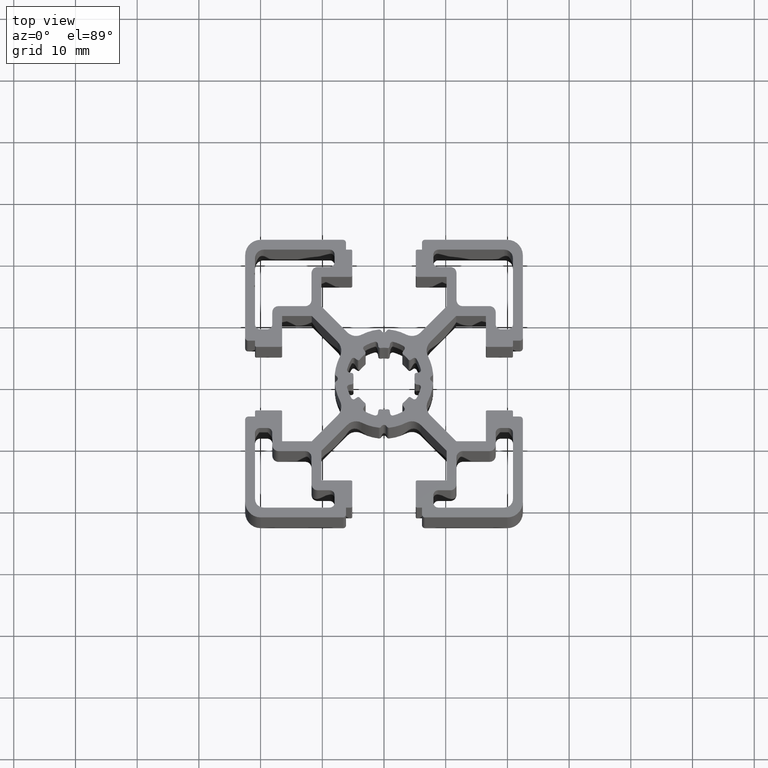
[diagram: clean part render]
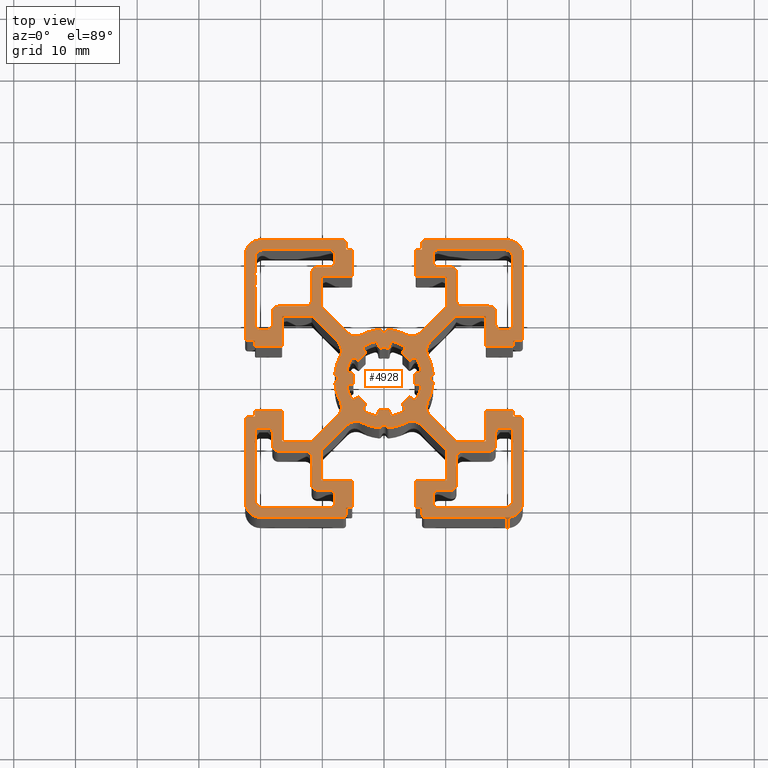
[diagram: same view with one face highlighted and labeled with its STEP entity id]
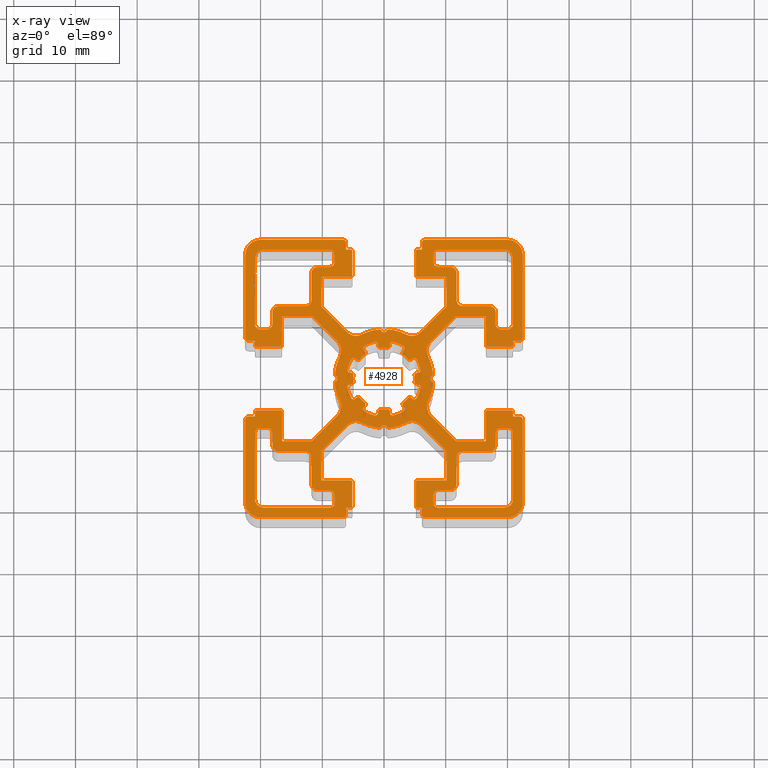
[diagram: x-ray of the same camera — body ghosted, the highlighted face saturated]
A machine part, top view. The second image highlights one B-rep face of the part: STEP entity #4928.
The next image is the same camera in x-ray: the body ghosted, the highlighted face saturated — about 0% of this face is hidden behind the body in this view.
In plain terms, the highlighted planar face has unit normal (0, 0, 1).
Its self-contained STEP definition (entity closure, byte-faithful):
#15=FACE_BOUND('',#921,.T.);
#16=FACE_BOUND('',#922,.T.);
#17=FACE_BOUND('',#923,.T.);
#18=FACE_BOUND('',#924,.T.);
#19=FACE_BOUND('',#925,.T.);
#25=CIRCLE('',#4941,0.8);
#27=CIRCLE('',#4945,1.);
#29=CIRCLE('',#4949,1.);
#31=CIRCLE('',#4953,1.);
#33=CIRCLE('',#4957,0.8);
#35=CIRCLE('',#4961,0.8);
#37=CIRCLE('',#4965,1.39999999999986);
#39=CIRCLE('',#4969,0.8);
#41=CIRCLE('',#4972,0.8);
#43=CIRCLE('',#4976,1.);
#45=CIRCLE('',#4980,1.);
#47=CIRCLE('',#4984,1.);
#49=CIRCLE('',#4988,0.8);
#51=CIRCLE('',#4992,0.8);
#53=CIRCLE('',#5002,1.4);
#55=CIRCLE('',#5006,0.8);
#57=CIRCLE('',#5010,0.8);
#59=CIRCLE('',#5014,0.8);
#61=CIRCLE('',#5018,1.);
#63=CIRCLE('',#5022,1.);
#65=CIRCLE('',#5026,1.);
#67=CIRCLE('',#5030,0.8);
#69=CIRCLE('',#5034,0.8);
#71=CIRCLE('',#5038,1.4);
#73=CIRCLE('',#5043,0.4);
#75=CIRCLE('',#5046,6.15);
#77=CIRCLE('',#5049,0.4);
#79=CIRCLE('',#5053,0.3);
#81=CIRCLE('',#5056,4.99999999999883);
#83=CIRCLE('',#5059,0.3);
#85=CIRCLE('',#5063,0.4);
#87=CIRCLE('',#5066,6.15);
#89=CIRCLE('',#5069,0.4);
#91=CIRCLE('',#5073,0.3);
#93=CIRCLE('',#5076,4.99999999999996);
#95=CIRCLE('',#5079,0.3);
#97=CIRCLE('',#5083,0.4);
#99=CIRCLE('',#5086,6.15);
#101=CIRCLE('',#5089,0.4);
#103=CIRCLE('',#5093,0.3);
#105=CIRCLE('',#5096,5.00000000000273);
#107=CIRCLE('',#5099,0.3);
#109=CIRCLE('',#5103,0.4);
#111=CIRCLE('',#5106,6.15);
#113=CIRCLE('',#5109,0.4);
#115=CIRCLE('',#5113,0.3);
#117=CIRCLE('',#5116,5.00000000000547);
#119=CIRCLE('',#5119,0.3);
#121=CIRCLE('',#5123,0.4);
#123=CIRCLE('',#5126,6.15);
#125=CIRCLE('',#5129,0.4);
#127=CIRCLE('',#5133,0.3);
#129=CIRCLE('',#5136,5.00000000000659);
#131=CIRCLE('',#5139,0.3);
#133=CIRCLE('',#5143,0.4);
#135=CIRCLE('',#5146,6.15);
#137=CIRCLE('',#5149,0.4);
#139=CIRCLE('',#5153,0.3);
#141=CIRCLE('',#5156,5.00000000000547);
#143=CIRCLE('',#5159,0.3);
#145=CIRCLE('',#5163,0.4);
#147=CIRCLE('',#5166,6.15);
#149=CIRCLE('',#5169,0.4);
#151=CIRCLE('',#5173,0.3);
#153=CIRCLE('',#5176,5.00000000000273);
#155=CIRCLE('',#5179,0.3);
#157=CIRCLE('',#5183,0.4);
#159=CIRCLE('',#5186,6.15);
#161=CIRCLE('',#5189,0.4);
#163=CIRCLE('',#5193,0.3);
#165=CIRCLE('',#5196,5.);
#167=CIRCLE('',#5199,0.3);
#169=CIRCLE('',#5202,0.2);
#171=CIRCLE('',#5208,2.);
#173=CIRCLE('',#5211,8.);
#175=CIRCLE('',#5214,0.4);
#177=CIRCLE('',#5217,0.5);
#179=CIRCLE('',#5220,0.4);
#181=CIRCLE('',#5223,8.);
#183=CIRCLE('',#5226,2.);
#185=CIRCLE('',#5232,0.2);
#187=CIRCLE('',#5236,0.2);
#189=CIRCLE('',#5241,0.5);
#191=CIRCLE('',#5244,0.5);
#193=CIRCLE('',#5249,0.2);
#195=CIRCLE('',#5255,0.2);
#197=CIRCLE('',#5259,0.2);
#199=CIRCLE('',#5265,2.);
#201=CIRCLE('',#5268,8.);
#203=CIRCLE('',#5271,0.4);
#205=CIRCLE('',#5274,0.5);
#207=CIRCLE('',#5277,0.4);
#209=CIRCLE('',#5280,8.);
#211=CIRCLE('',#5283,2.);
#213=CIRCLE('',#5289,0.2);
#215=CIRCLE('',#5293,0.2);
#217=CIRCLE('',#5298,0.5);
#219=CIRCLE('',#5301,0.5);
#221=CIRCLE('',#5304,0.4);
#223=CIRCLE('',#5307,8.);
#225=CIRCLE('',#5310,2.);
#227=CIRCLE('',#5316,0.2);
#229=CIRCLE('',#5320,0.2);
#231=CIRCLE('',#5325,0.5);
#233=CIRCLE('',#5328,0.5);
#235=CIRCLE('',#5333,0.2);
#237=CIRCLE('',#5337,0.2);
#239=CIRCLE('',#5343,2.);
#241=CIRCLE('',#5346,8.);
#243=CIRCLE('',#5349,0.4);
#245=CIRCLE('',#5352,0.5);
#247=CIRCLE('',#5355,0.5);
#249=CIRCLE('',#5360,0.199999999999818);
#251=CIRCLE('',#5364,0.2);
#253=CIRCLE('',#5370,2.);
#255=CIRCLE('',#5373,8.);
#257=CIRCLE('',#5376,0.4);
#259=CIRCLE('',#5379,0.5);
#261=CIRCLE('',#5382,0.4);
#263=CIRCLE('',#5385,8.);
#265=CIRCLE('',#5388,2.);
#267=CIRCLE('',#5394,0.2);
#269=CIRCLE('',#5398,0.2);
#271=CIRCLE('',#5403,0.5);
#273=CIRCLE('',#5407,1.4);
#275=CIRCLE('',#5411,0.8);
#277=CIRCLE('',#5415,0.8);
#279=CIRCLE('',#5419,1.);
#281=CIRCLE('',#5423,1.);
#283=CIRCLE('',#5427,1.);
#285=CIRCLE('',#5431,0.8);
#287=CIRCLE('',#5435,0.8);
#289=CIRCLE('',#5443,2.5);
#290=CIRCLE('',#5444,2.5);
#291=CIRCLE('',#5445,2.5);
#292=CIRCLE('',#5446,2.5);
#672=FACE_OUTER_BOUND('',#920,.T.);
#920=EDGE_LOOP('',(#4057,#4058,#4059,#4060,#4061,#4062,#4063,#4064,#4065,
#4066,#4067,#4068,#4069,#4070,#4071,#4072,#4073,#4074,#4075,#4076,#4077,
#4078,#4079,#4080,#4081,#4082,#4083,#4084,#4085,#4086,#4087,#4088,#4089,
#4090,#4091,#4092,#4093,#4094,#4095,#4096,#4097,#4098,#4099,#4100,#4101,
#4102,#4103,#4104,#4105,#4106,#4107,#4108,#4109,#4110,#4111,#4112,#4113,
#4114,#4115,#4116,#4117,#4118,#4119,#4120,#4121,#4122,#4123,#4124,#4125,
#4126,#4127,#4128,#4129,#4130,#4131,#4132,#4133,#4134,#4135,#4136,#4137,
#4138,#4139,#4140,#4141,#4142,#4143,#4144,#4145,#4146,#4147,#4148,#4149,
#4150,#4151,#4152,#4153,#4154,#4155,#4156,#4157,#4158,#4159,#4160,#4161,
#4162,#4163,#4164,#4165,#4166,#4167,#4168));
#921=EDGE_LOOP('',(#4169,#4170,#4171,#4172,#4173,#4174,#4175,#4176,#4177,
#4178,#4179,#4180,#4181,#4182,#4183,#4184));
#922=EDGE_LOOP('',(#4185,#4186,#4187,#4188,#4189,#4190,#4191,#4192,#4193,
#4194,#4195,#4196,#4197,#4198,#4199,#4200,#4201,#4202,#4203,#4204,#4205,
#4206,#4207,#4208,#4209,#4210,#4211,#4212,#4213,#4214,#4215,#4216,#4217,
#4218,#4219,#4220,#4221,#4222,#4223,#4224,#4225,#4226,#4227,#4228,#4229,
#4230,#4231,#4232,#4233,#4234,#4235,#4236,#4237,#4238,#4239,#4240,#4241,
#4242,#4243,#4244,#4245,#4246,#4247,#4248));
#923=EDGE_LOOP('',(#4249,#4250,#4251,#4252,#4253,#4254,#4255,#4256,#4257,
#4258,#4259,#4260,#4261,#4262,#4263,#4264));
#924=EDGE_LOOP('',(#4265,#4266,#4267,#4268,#4269,#4270,#4271,#4272,#4273,
#4274,#4275,#4276,#4277,#4278,#4279,#4280,#4281,#4282,#4283,#4284,#4285,
#4286));
#925=EDGE_LOOP('',(#4287,#4288,#4289,#4290,#4291,#4292,#4293,#4294,#4295,
#4296,#4297,#4298,#4299,#4300,#4301,#4302));
#939=LINE('',#6971,#1405);
#944=LINE('',#6985,#1410);
#948=LINE('',#6997,#1414);
#952=LINE('',#7009,#1418);
#956=LINE('',#7021,#1422);
#960=LINE('',#7033,#1426);
#964=LINE('',#7045,#1430);
#968=LINE('',#7057,#1434);
#973=LINE('',#7075,#1439);
#977=LINE('',#7087,#1443);
#981=LINE('',#7099,#1447);
#985=LINE('',#7111,#1451);
#989=LINE('',#7123,#1455);
#993=LINE('',#7135,#1459);
#996=LINE('',#7141,#1462);
#999=LINE('',#7147,#1465);
#1002=LINE('',#7153,#1468);
#1005=LINE('',#7159,#1471);
#1008=LINE('',#7165,#1474);
#1011=LINE('',#7171,#1477);
#1015=LINE('',#7183,#1481);
#1019=LINE('',#7194,#1485);
#1023=LINE('',#7207,#1489);
#1027=LINE('',#7219,#1493);
#1031=LINE('',#7231,#1497);
#1035=LINE('',#7243,#1501);
#1039=LINE('',#7255,#1505);
#1043=LINE('',#7267,#1509);
#1047=LINE('',#7279,#1513);
#1051=LINE('',#7290,#1517);
#1053=LINE('',#7295,#1519);
#1060=LINE('',#7321,#1526);
#1066=LINE('',#7345,#1532);
#1072=LINE('',#7369,#1538);
#1078=LINE('',#7393,#1544);
#1084=LINE('',#7417,#1550);
#1090=LINE('',#7441,#1556);
#1096=LINE('',#7465,#1562);
#1102=LINE('',#7489,#1568);
#1108=LINE('',#7513,#1574);
#1114=LINE('',#7537,#1580);
#1120=LINE('',#7561,#1586);
#1126=LINE('',#7585,#1592);
#1132=LINE('',#7609,#1598);
#1138=LINE('',#7633,#1604);
#1144=LINE('',#7657,#1610);
#1151=LINE('',#7687,#1617);
#1154=LINE('',#7693,#1620);
#1157=LINE('',#7699,#1623);
#1167=LINE('',#7747,#1633);
#1170=LINE('',#7753,#1636);
#1173=LINE('',#7759,#1639);
#1177=LINE('',#7771,#1643);
#1181=LINE('',#7783,#1647);
#1184=LINE('',#7789,#1650);
#1190=LINE('',#7810,#1656);
#1193=LINE('',#7816,#1659);
#1197=LINE('',#7827,#1663);
#1199=LINE('',#7832,#1665);
#1203=LINE('',#7840,#1669);
#1207=LINE('',#7852,#1673);
#1211=LINE('',#7864,#1677);
#1214=LINE('',#7870,#1680);
#1217=LINE('',#7876,#1683);
#1227=LINE('',#7924,#1693);
#1230=LINE('',#7930,#1696);
#1233=LINE('',#7936,#1699);
#1237=LINE('',#7948,#1703);
#1241=LINE('',#7960,#1707);
#1244=LINE('',#7966,#1710);
#1253=LINE('',#8005,#1719);
#1256=LINE('',#8011,#1722);
#1259=LINE('',#8017,#1725);
#1263=LINE('',#8029,#1729);
#1267=LINE('',#8041,#1733);
#1270=LINE('',#8047,#1736);
#1276=LINE('',#8068,#1742);
#1279=LINE('',#8074,#1745);
#1283=LINE('',#8086,#1749);
#1287=LINE('',#8098,#1753);
#1290=LINE('',#8104,#1756);
#1293=LINE('',#8110,#1759);
#1301=LINE('',#8146,#1767);
#1304=LINE('',#8152,#1770);
#1308=LINE('',#8164,#1774);
#1312=LINE('',#8176,#1778);
#1315=LINE('',#8182,#1781);
#1318=LINE('',#8188,#1784);
#1328=LINE('',#8236,#1794);
#1331=LINE('',#8242,#1797);
#1334=LINE('',#8248,#1800);
#1338=LINE('',#8260,#1804);
#1342=LINE('',#8272,#1808);
#1345=LINE('',#8278,#1811);
#1349=LINE('',#8291,#1815);
#1354=LINE('',#8305,#1820);
#1358=LINE('',#8317,#1824);
#1362=LINE('',#8329,#1828);
#1366=LINE('',#8341,#1832);
#1370=LINE('',#8353,#1836);
#1374=LINE('',#8365,#1840);
#1378=LINE('',#8377,#1844);
#1383=LINE('',#8389,#1849);
#1384=LINE('',#8392,#1850);
#1389=LINE('',#8401,#1855);
#1390=LINE('',#8404,#1856);
#1395=LINE('',#8413,#1861);
#1396=LINE('',#8417,#1862);
#1397=LINE('',#8420,#1863);
#1398=LINE('',#8423,#1864);
#1405=VECTOR('',#5463,1.20000000000005);
#1410=VECTOR('',#5476,1.94999999999993);
#1414=VECTOR('',#5488,4.34999999999991);
#1418=VECTOR('',#5500,4.35000000000002);
#1422=VECTOR('',#5512,1.95000000000005);
#1426=VECTOR('',#5524,1.20000000000005);
#1430=VECTOR('',#5536,10.7);
#1434=VECTOR('',#5548,10.6999999999999);
#1439=VECTOR('',#5567,1.95000000000005);
#1443=VECTOR('',#5579,4.35000000000014);
#1447=VECTOR('',#5591,4.35000000000002);
#1451=VECTOR('',#5603,1.95000000000004);
#1455=VECTOR('',#5615,1.20000000000005);
#1459=VECTOR('',#5627,6.);
#1462=VECTOR('',#5632,0.282842712474687);
#1465=VECTOR('',#5637,0.282842712474682);
#1468=VECTOR('',#5642,1.59999999999991);
#1471=VECTOR('',#5647,0.282842712474682);
#1474=VECTOR('',#5652,0.282842712474689);
#1477=VECTOR('',#5657,2.29999999999995);
#1481=VECTOR('',#5669,10.7);
#1485=VECTOR('',#5681,1.20000000000005);
#1489=VECTOR('',#5693,1.20000000000005);
#1493=VECTOR('',#5705,1.95000000000005);
#1497=VECTOR('',#5717,4.34999999999991);
#1501=VECTOR('',#5729,4.35000000000002);
#1505=VECTOR('',#5741,1.95000000000005);
#1509=VECTOR('',#5753,1.20000000000005);
#1513=VECTOR('',#5765,10.7);
#1517=VECTOR('',#5777,10.7);
#1519=VECTOR('',#5781,0.44456759022695);
#1526=VECTOR('',#5808,0.444567492257993);
#1532=VECTOR('',#5834,0.444567178163822);
#1538=VECTOR('',#5860,0.444568165416901);
#1544=VECTOR('',#5886,0.444567755437607);
#1550=VECTOR('',#5912,0.444567318610188);
#1556=VECTOR('',#5938,0.444567178163882);
#1562=VECTOR('',#5964,0.444568165416992);
#1568=VECTOR('',#5990,0.444567755437534);
#1574=VECTOR('',#6016,0.444567492257975);
#1580=VECTOR('',#6042,0.444567178163818);
#1586=VECTOR('',#6068,0.444567346264927);
#1592=VECTOR('',#6094,0.444567755437645);
#1598=VECTOR('',#6120,0.444567492257815);
#1604=VECTOR('',#6146,0.444567318610195);
#1610=VECTOR('',#6172,0.444567590226888);
#1617=VECTOR('',#6205,4.79999999999996);
#1620=VECTOR('',#6210,4.79436499999997);
#1623=VECTOR('',#6215,5.94690238006717);
#1633=VECTOR('',#6269,5.94690238006733);
#1636=VECTOR('',#6274,4.79436499999997);
#1639=VECTOR('',#6279,4.79999999999995);
#1643=VECTOR('',#6291,4.);
#1647=VECTOR('',#6303,0.799999999999947);
#1650=VECTOR('',#6308,1.10000000000002);
#1656=VECTOR('',#6328,1.10000000000003);
#1659=VECTOR('',#6333,0.799999999999956);
#1663=VECTOR('',#6345,4.);
#1665=VECTOR('',#6349,1.10000000000003);
#1669=VECTOR('',#6355,0.799999999999956);
#1673=VECTOR('',#6367,3.99999999999999);
#1677=VECTOR('',#6379,4.79999999999996);
#1680=VECTOR('',#6384,4.79436499999997);
#1683=VECTOR('',#6389,5.94690238006718);
#1693=VECTOR('',#6443,5.94690238006734);
#1696=VECTOR('',#6448,4.79436499999996);
#1699=VECTOR('',#6453,4.79999999999995);
#1703=VECTOR('',#6465,3.99999999999999);
#1707=VECTOR('',#6477,0.799999999999867);
#1710=VECTOR('',#6482,1.09999999999999);
#1719=VECTOR('',#6523,5.94690238006725);
#1722=VECTOR('',#6528,4.79436499999997);
#1725=VECTOR('',#6533,4.79999999999996);
#1729=VECTOR('',#6545,3.99999999999999);
#1733=VECTOR('',#6557,0.799999999999956);
#1736=VECTOR('',#6562,1.09999999999991);
#1742=VECTOR('',#6582,1.09999999999991);
#1745=VECTOR('',#6587,0.799999999999952);
#1749=VECTOR('',#6599,3.99999999999999);
#1753=VECTOR('',#6611,4.79999999999995);
#1756=VECTOR('',#6616,4.79436499999997);
#1759=VECTOR('',#6621,5.94690238006733);
#1767=VECTOR('',#6661,1.10000000000014);
#1770=VECTOR('',#6666,0.799999999999952);
#1774=VECTOR('',#6678,4.);
#1778=VECTOR('',#6690,4.79999999999995);
#1781=VECTOR('',#6695,4.79436499999997);
#1784=VECTOR('',#6700,5.94690238006733);
#1794=VECTOR('',#6754,5.94690238006725);
#1797=VECTOR('',#6759,4.79436499999997);
#1800=VECTOR('',#6764,4.79999999999996);
#1804=VECTOR('',#6776,4.);
#1808=VECTOR('',#6788,0.799999999999956);
#1811=VECTOR('',#6793,1.10000000000013);
#1815=VECTOR('',#6805,10.7);
#1820=VECTOR('',#6818,10.6999999999999);
#1824=VECTOR('',#6830,1.20000000000005);
#1828=VECTOR('',#6842,1.94999999999993);
#1832=VECTOR('',#6854,4.35000000000014);
#1836=VECTOR('',#6866,4.35000000000002);
#1840=VECTOR('',#6878,1.95000000000004);
#1844=VECTOR('',#6890,1.20000000000005);
#1849=VECTOR('',#6903,13.3499998981587);
#1850=VECTOR('',#6906,13.3500005873958);
#1855=VECTOR('',#6913,13.3500005873959);
#1856=VECTOR('',#6916,13.3499995265348);
#1861=VECTOR('',#6923,13.3499995265348);
#1862=VECTOR('',#6928,13.3500009590192);
#1863=VECTOR('',#6931,13.3499998981586);
#1864=VECTOR('',#6934,13.3500009590192);
#1871=VERTEX_POINT('',#6969);
#1872=VERTEX_POINT('',#6970);
#1875=VERTEX_POINT('',#6978);
#1877=VERTEX_POINT('',#6984);
#1879=VERTEX_POINT('',#6990);
#1881=VERTEX_POINT('',#6996);
#1883=VERTEX_POINT('',#7002);
#1885=VERTEX_POINT('',#7008);
#1887=VERTEX_POINT('',#7014);
#1889=VERTEX_POINT('',#7020);
#1891=VERTEX_POINT('',#7026);
#1893=VERTEX_POINT('',#7032);
#1895=VERTEX_POINT('',#7038);
#1897=VERTEX_POINT('',#7044);
#1899=VERTEX_POINT('',#7050);
#1901=VERTEX_POINT('',#7056);
#1903=VERTEX_POINT('',#7065);
#1904=VERTEX_POINT('',#7066);
#1907=VERTEX_POINT('',#7074);
#1909=VERTEX_POINT('',#7080);
#1911=VERTEX_POINT('',#7086);
#1913=VERTEX_POINT('',#7092);
#1915=VERTEX_POINT('',#7098);
#1917=VERTEX_POINT('',#7104);
#1919=VERTEX_POINT('',#7110);
#1921=VERTEX_POINT('',#7116);
#1923=VERTEX_POINT('',#7122);
#1925=VERTEX_POINT('',#7128);
#1927=VERTEX_POINT('',#7134);
#1929=VERTEX_POINT('',#7140);
#1931=VERTEX_POINT('',#7146);
#1933=VERTEX_POINT('',#7152);
#1935=VERTEX_POINT('',#7158);
#1937=VERTEX_POINT('',#7164);
#1939=VERTEX_POINT('',#7170);
#1941=VERTEX_POINT('',#7176);
#1943=VERTEX_POINT('',#7182);
#1945=VERTEX_POINT('',#7188);
#1947=VERTEX_POINT('',#7197);
#1948=VERTEX_POINT('',#7198);
#1951=VERTEX_POINT('',#7206);
#1953=VERTEX_POINT('',#7212);
#1955=VERTEX_POINT('',#7218);
#1957=VERTEX_POINT('',#7224);
#1959=VERTEX_POINT('',#7230);
#1961=VERTEX_POINT('',#7236);
#1963=VERTEX_POINT('',#7242);
#1965=VERTEX_POINT('',#7248);
#1967=VERTEX_POINT('',#7254);
#1969=VERTEX_POINT('',#7260);
#1971=VERTEX_POINT('',#7266);
#1973=VERTEX_POINT('',#7272);
#1975=VERTEX_POINT('',#7278);
#1977=VERTEX_POINT('',#7284);
#1979=VERTEX_POINT('',#7293);
#1980=VERTEX_POINT('',#7294);
#1983=VERTEX_POINT('',#7302);
#1985=VERTEX_POINT('',#7308);
#1987=VERTEX_POINT('',#7314);
#1989=VERTEX_POINT('',#7320);
#1991=VERTEX_POINT('',#7326);
#1993=VERTEX_POINT('',#7332);
#1995=VERTEX_POINT('',#7338);
#1997=VERTEX_POINT('',#7344);
#1999=VERTEX_POINT('',#7350);
#2001=VERTEX_POINT('',#7356);
#2003=VERTEX_POINT('',#7362);
#2005=VERTEX_POINT('',#7368);
#2007=VERTEX_POINT('',#7374);
#2009=VERTEX_POINT('',#7380);
#2011=VERTEX_POINT('',#7386);
#2013=VERTEX_POINT('',#7392);
#2015=VERTEX_POINT('',#7398);
#2017=VERTEX_POINT('',#7404);
#2019=VERTEX_POINT('',#7410);
#2021=VERTEX_POINT('',#7416);
#2023=VERTEX_POINT('',#7422);
#2025=VERTEX_POINT('',#7428);
#2027=VERTEX_POINT('',#7434);
#2029=VERTEX_POINT('',#7440);
#2031=VERTEX_POINT('',#7446);
#2033=VERTEX_POINT('',#7452);
#2035=VERTEX_POINT('',#7458);
#2037=VERTEX_POINT('',#7464);
#2039=VERTEX_POINT('',#7470);
#2041=VERTEX_POINT('',#7476);
#2043=VERTEX_POINT('',#7482);
#2045=VERTEX_POINT('',#7488);
#2047=VERTEX_POINT('',#7494);
#2049=VERTEX_POINT('',#7500);
#2051=VERTEX_POINT('',#7506);
#2053=VERTEX_POINT('',#7512);
#2055=VERTEX_POINT('',#7518);
#2057=VERTEX_POINT('',#7524);
#2059=VERTEX_POINT('',#7530);
#2061=VERTEX_POINT('',#7536);
#2063=VERTEX_POINT('',#7542);
#2065=VERTEX_POINT('',#7548);
#2067=VERTEX_POINT('',#7554);
#2069=VERTEX_POINT('',#7560);
#2071=VERTEX_POINT('',#7566);
#2073=VERTEX_POINT('',#7572);
#2075=VERTEX_POINT('',#7578);
#2077=VERTEX_POINT('',#7584);
#2079=VERTEX_POINT('',#7590);
#2081=VERTEX_POINT('',#7596);
#2083=VERTEX_POINT('',#7602);
#2085=VERTEX_POINT('',#7608);
#2087=VERTEX_POINT('',#7614);
#2089=VERTEX_POINT('',#7620);
#2091=VERTEX_POINT('',#7626);
#2093=VERTEX_POINT('',#7632);
#2095=VERTEX_POINT('',#7638);
#2097=VERTEX_POINT('',#7644);
#2099=VERTEX_POINT('',#7650);
#2101=VERTEX_POINT('',#7656);
#2103=VERTEX_POINT('',#7662);
#2105=VERTEX_POINT('',#7668);
#2107=VERTEX_POINT('',#7677);
#2108=VERTEX_POINT('',#7678);
#2111=VERTEX_POINT('',#7686);
#2113=VERTEX_POINT('',#7692);
#2115=VERTEX_POINT('',#7698);
#2117=VERTEX_POINT('',#7704);
#2119=VERTEX_POINT('',#7710);
#2121=VERTEX_POINT('',#7716);
#2123=VERTEX_POINT('',#7722);
#2125=VERTEX_POINT('',#7728);
#2127=VERTEX_POINT('',#7734);
#2129=VERTEX_POINT('',#7740);
#2131=VERTEX_POINT('',#7746);
#2133=VERTEX_POINT('',#7752);
#2135=VERTEX_POINT('',#7758);
#2137=VERTEX_POINT('',#7764);
#2139=VERTEX_POINT('',#7770);
#2141=VERTEX_POINT('',#7776);
#2143=VERTEX_POINT('',#7782);
#2145=VERTEX_POINT('',#7788);
#2147=VERTEX_POINT('',#7794);
#2149=VERTEX_POINT('',#7800);
#2150=VERTEX_POINT('',#7801);
#2153=VERTEX_POINT('',#7809);
#2155=VERTEX_POINT('',#7815);
#2157=VERTEX_POINT('',#7821);
#2159=VERTEX_POINT('',#7830);
#2160=VERTEX_POINT('',#7831);
#2163=VERTEX_POINT('',#7839);
#2165=VERTEX_POINT('',#7845);
#2167=VERTEX_POINT('',#7851);
#2169=VERTEX_POINT('',#7857);
#2171=VERTEX_POINT('',#7863);
#2173=VERTEX_POINT('',#7869);
#2175=VERTEX_POINT('',#7875);
#2177=VERTEX_POINT('',#7881);
#2179=VERTEX_POINT('',#7887);
#2181=VERTEX_POINT('',#7893);
#2183=VERTEX_POINT('',#7899);
#2185=VERTEX_POINT('',#7905);
#2187=VERTEX_POINT('',#7911);
#2189=VERTEX_POINT('',#7917);
#2191=VERTEX_POINT('',#7923);
#2193=VERTEX_POINT('',#7929);
#2195=VERTEX_POINT('',#7935);
#2197=VERTEX_POINT('',#7941);
#2199=VERTEX_POINT('',#7947);
#2201=VERTEX_POINT('',#7953);
#2203=VERTEX_POINT('',#7959);
#2205=VERTEX_POINT('',#7965);
#2207=VERTEX_POINT('',#7971);
#2209=VERTEX_POINT('',#7977);
#2211=VERTEX_POINT('',#7983);
#2212=VERTEX_POINT('',#7984);
#2215=VERTEX_POINT('',#7992);
#2217=VERTEX_POINT('',#7998);
#2219=VERTEX_POINT('',#8004);
#2221=VERTEX_POINT('',#8010);
#2223=VERTEX_POINT('',#8016);
#2225=VERTEX_POINT('',#8022);
#2227=VERTEX_POINT('',#8028);
#2229=VERTEX_POINT('',#8034);
#2231=VERTEX_POINT('',#8040);
#2233=VERTEX_POINT('',#8046);
#2235=VERTEX_POINT('',#8052);
#2237=VERTEX_POINT('',#8058);
#2238=VERTEX_POINT('',#8059);
#2241=VERTEX_POINT('',#8067);
#2243=VERTEX_POINT('',#8073);
#2245=VERTEX_POINT('',#8079);
#2247=VERTEX_POINT('',#8085);
#2249=VERTEX_POINT('',#8091);
#2251=VERTEX_POINT('',#8097);
#2253=VERTEX_POINT('',#8103);
#2255=VERTEX_POINT('',#8109);
#2257=VERTEX_POINT('',#8115);
#2259=VERTEX_POINT('',#8121);
#2261=VERTEX_POINT('',#8127);
#2263=VERTEX_POINT('',#8136);
#2264=VERTEX_POINT('',#8137);
#2267=VERTEX_POINT('',#8145);
#2269=VERTEX_POINT('',#8151);
#2271=VERTEX_POINT('',#8157);
#2273=VERTEX_POINT('',#8163);
#2275=VERTEX_POINT('',#8169);
#2277=VERTEX_POINT('',#8175);
#2279=VERTEX_POINT('',#8181);
#2281=VERTEX_POINT('',#8187);
#2283=VERTEX_POINT('',#8193);
#2285=VERTEX_POINT('',#8199);
#2287=VERTEX_POINT('',#8205);
#2289=VERTEX_POINT('',#8211);
#2291=VERTEX_POINT('',#8217);
#2293=VERTEX_POINT('',#8223);
#2295=VERTEX_POINT('',#8229);
#2297=VERTEX_POINT('',#8235);
#2299=VERTEX_POINT('',#8241);
#2301=VERTEX_POINT('',#8247);
#2303=VERTEX_POINT('',#8253);
#2305=VERTEX_POINT('',#8259);
#2307=VERTEX_POINT('',#8265);
#2309=VERTEX_POINT('',#8271);
#2311=VERTEX_POINT('',#8277);
#2313=VERTEX_POINT('',#8283);
#2315=VERTEX_POINT('',#8289);
#2316=VERTEX_POINT('',#8290);
#2319=VERTEX_POINT('',#8298);
#2321=VERTEX_POINT('',#8304);
#2323=VERTEX_POINT('',#8310);
#2325=VERTEX_POINT('',#8316);
#2327=VERTEX_POINT('',#8322);
#2329=VERTEX_POINT('',#8328);
#2331=VERTEX_POINT('',#8334);
#2333=VERTEX_POINT('',#8340);
#2335=VERTEX_POINT('',#8346);
#2337=VERTEX_POINT('',#8352);
#2339=VERTEX_POINT('',#8358);
#2341=VERTEX_POINT('',#8364);
#2343=VERTEX_POINT('',#8370);
#2345=VERTEX_POINT('',#8376);
#2348=VERTEX_POINT('',#8387);
#2349=VERTEX_POINT('',#8391);
#2352=VERTEX_POINT('',#8399);
#2353=VERTEX_POINT('',#8403);
#2356=VERTEX_POINT('',#8411);
#2357=VERTEX_POINT('',#8415);
#2358=VERTEX_POINT('',#8418);
#2359=VERTEX_POINT('',#8422);
#2363=EDGE_CURVE('',#1871,#1872,#939,.T.);
#2367=EDGE_CURVE('',#1872,#1875,#25,.T.);
#2370=EDGE_CURVE('',#1875,#1877,#944,.T.);
#2373=EDGE_CURVE('',#1877,#1879,#27,.T.);
#2376=EDGE_CURVE('',#1879,#1881,#948,.T.);
#2379=EDGE_CURVE('',#1881,#1883,#29,.T.);
#2382=EDGE_CURVE('',#1883,#1885,#952,.T.);
#2385=EDGE_CURVE('',#1885,#1887,#31,.T.);
#2388=EDGE_CURVE('',#1887,#1889,#956,.T.);
#2391=EDGE_CURVE('',#1889,#1891,#33,.T.);
#2394=EDGE_CURVE('',#1891,#1893,#960,.T.);
#2397=EDGE_CURVE('',#1893,#1895,#35,.T.);
#2400=EDGE_CURVE('',#1895,#1897,#964,.T.);
#2403=EDGE_CURVE('',#1897,#1899,#37,.T.);
#2406=EDGE_CURVE('',#1899,#1901,#968,.T.);
#2409=EDGE_CURVE('',#1901,#1871,#39,.T.);
#2411=EDGE_CURVE('',#1903,#1904,#41,.T.);
#2415=EDGE_CURVE('',#1904,#1907,#973,.T.);
#2418=EDGE_CURVE('',#1907,#1909,#43,.T.);
#2421=EDGE_CURVE('',#1909,#1911,#977,.T.);
#2424=EDGE_CURVE('',#1911,#1913,#45,.T.);
#2427=EDGE_CURVE('',#1913,#1915,#981,.T.);
#2430=EDGE_CURVE('',#1915,#1917,#47,.T.);
#2433=EDGE_CURVE('',#1917,#1919,#985,.T.);
#2436=EDGE_CURVE('',#1919,#1921,#49,.T.);
#2439=EDGE_CURVE('',#1921,#1923,#989,.T.);
#2442=EDGE_CURVE('',#1923,#1925,#51,.T.);
#2445=EDGE_CURVE('',#1925,#1927,#993,.T.);
#2448=EDGE_CURVE('',#1927,#1929,#996,.T.);
#2451=EDGE_CURVE('',#1929,#1931,#999,.T.);
#2454=EDGE_CURVE('',#1931,#1933,#1002,.T.);
#2457=EDGE_CURVE('',#1933,#1935,#1005,.T.);
#2460=EDGE_CURVE('',#1935,#1937,#1008,.T.);
#2463=EDGE_CURVE('',#1937,#1939,#1011,.T.);
#2466=EDGE_CURVE('',#1939,#1941,#53,.T.);
#2469=EDGE_CURVE('',#1941,#1943,#1015,.T.);
#2472=EDGE_CURVE('',#1943,#1945,#55,.T.);
#2475=EDGE_CURVE('',#1945,#1903,#1019,.T.);
#2477=EDGE_CURVE('',#1947,#1948,#57,.T.);
#2481=EDGE_CURVE('',#1951,#1947,#1023,.T.);
#2484=EDGE_CURVE('',#1953,#1951,#59,.T.);
#2487=EDGE_CURVE('',#1955,#1953,#1027,.T.);
#2490=EDGE_CURVE('',#1957,#1955,#61,.T.);
#2493=EDGE_CURVE('',#1959,#1957,#1031,.T.);
#2496=EDGE_CURVE('',#1961,#1959,#63,.T.);
#2499=EDGE_CURVE('',#1963,#1961,#1035,.T.);
#2502=EDGE_CURVE('',#1965,#1963,#65,.T.);
#2505=EDGE_CURVE('',#1967,#1965,#1039,.T.);
#2508=EDGE_CURVE('',#1969,#1967,#67,.T.);
#2511=EDGE_CURVE('',#1971,#1969,#1043,.T.);
#2514=EDGE_CURVE('',#1973,#1971,#69,.T.);
#2517=EDGE_CURVE('',#1975,#1973,#1047,.T.);
#2520=EDGE_CURVE('',#1977,#1975,#71,.T.);
#2523=EDGE_CURVE('',#1948,#1977,#1051,.T.);
#2525=EDGE_CURVE('',#1979,#1980,#1053,.T.);
#2529=EDGE_CURVE('',#1980,#1983,#73,.T.);
#2532=EDGE_CURVE('',#1983,#1985,#75,.T.);
#2535=EDGE_CURVE('',#1985,#1987,#77,.T.);
#2538=EDGE_CURVE('',#1987,#1989,#1060,.T.);
#2541=EDGE_CURVE('',#1989,#1991,#79,.T.);
#2544=EDGE_CURVE('',#1991,#1993,#81,.T.);
#2547=EDGE_CURVE('',#1993,#1995,#83,.T.);
#2550=EDGE_CURVE('',#1995,#1997,#1066,.T.);
#2553=EDGE_CURVE('',#1997,#1999,#85,.T.);
#2556=EDGE_CURVE('',#1999,#2001,#87,.T.);
#2559=EDGE_CURVE('',#2001,#2003,#89,.T.);
#2562=EDGE_CURVE('',#2003,#2005,#1072,.T.);
#2565=EDGE_CURVE('',#2005,#2007,#91,.T.);
#2568=EDGE_CURVE('',#2007,#2009,#93,.T.);
#2571=EDGE_CURVE('',#2009,#2011,#95,.T.);
#2574=EDGE_CURVE('',#2011,#2013,#1078,.T.);
#2577=EDGE_CURVE('',#2013,#2015,#97,.T.);
#2580=EDGE_CURVE('',#2015,#2017,#99,.T.);
#2583=EDGE_CURVE('',#2017,#2019,#101,.T.);
#2586=EDGE_CURVE('',#2019,#2021,#1084,.T.);
#2589=EDGE_CURVE('',#2021,#2023,#103,.T.);
#2592=EDGE_CURVE('',#2023,#2025,#105,.T.);
#2595=EDGE_CURVE('',#2025,#2027,#107,.T.);
#2598=EDGE_CURVE('',#2027,#2029,#1090,.T.);
#2601=EDGE_CURVE('',#2029,#2031,#109,.T.);
#2604=EDGE_CURVE('',#2031,#2033,#111,.T.);
#2607=EDGE_CURVE('',#2033,#2035,#113,.T.);
#2610=EDGE_CURVE('',#2035,#2037,#1096,.T.);
#2613=EDGE_CURVE('',#2037,#2039,#115,.T.);
#2616=EDGE_CURVE('',#2039,#2041,#117,.T.);
#2619=EDGE_CURVE('',#2041,#2043,#119,.T.);
#2622=EDGE_CURVE('',#2043,#2045,#1102,.T.);
#2625=EDGE_CURVE('',#2045,#2047,#121,.T.);
#2628=EDGE_CURVE('',#2047,#2049,#123,.T.);
#2631=EDGE_CURVE('',#2049,#2051,#125,.T.);
#2634=EDGE_CURVE('',#2051,#2053,#1108,.T.);
#2637=EDGE_CURVE('',#2053,#2055,#127,.T.);
#2640=EDGE_CURVE('',#2055,#2057,#129,.T.);
#2643=EDGE_CURVE('',#2057,#2059,#131,.T.);
#2646=EDGE_CURVE('',#2059,#2061,#1114,.T.);
#2649=EDGE_CURVE('',#2061,#2063,#133,.T.);
#2652=EDGE_CURVE('',#2063,#2065,#135,.T.);
#2655=EDGE_CURVE('',#2065,#2067,#137,.T.);
#2658=EDGE_CURVE('',#2067,#2069,#1120,.T.);
#2661=EDGE_CURVE('',#2069,#2071,#139,.T.);
#2664=EDGE_CURVE('',#2071,#2073,#141,.T.);
#2667=EDGE_CURVE('',#2073,#2075,#143,.T.);
#2670=EDGE_CURVE('',#2075,#2077,#1126,.T.);
#2673=EDGE_CURVE('',#2077,#2079,#145,.T.);
#2676=EDGE_CURVE('',#2079,#2081,#147,.T.);
#2679=EDGE_CURVE('',#2081,#2083,#149,.T.);
#2682=EDGE_CURVE('',#2083,#2085,#1132,.T.);
#2685=EDGE_CURVE('',#2085,#2087,#151,.T.);
#2688=EDGE_CURVE('',#2087,#2089,#153,.T.);
#2691=EDGE_CURVE('',#2089,#2091,#155,.T.);
#2694=EDGE_CURVE('',#2091,#2093,#1138,.T.);
#2697=EDGE_CURVE('',#2093,#2095,#157,.T.);
#2700=EDGE_CURVE('',#2095,#2097,#159,.T.);
#2703=EDGE_CURVE('',#2097,#2099,#161,.T.);
#2706=EDGE_CURVE('',#2099,#2101,#1144,.T.);
#2709=EDGE_CURVE('',#2101,#2103,#163,.T.);
#2712=EDGE_CURVE('',#2103,#2105,#165,.T.);
#2715=EDGE_CURVE('',#2105,#1979,#167,.T.);
#2717=EDGE_CURVE('',#2107,#2108,#169,.T.);
#2721=EDGE_CURVE('',#2111,#2107,#1151,.T.);
#2724=EDGE_CURVE('',#2113,#2111,#1154,.T.);
#2727=EDGE_CURVE('',#2115,#2113,#1157,.T.);
#2730=EDGE_CURVE('',#2117,#2115,#171,.T.);
#2733=EDGE_CURVE('',#2119,#2117,#173,.T.);
#2736=EDGE_CURVE('',#2121,#2119,#175,.T.);
#2739=EDGE_CURVE('',#2123,#2121,#177,.T.);
#2742=EDGE_CURVE('',#2125,#2123,#179,.T.);
#2745=EDGE_CURVE('',#2127,#2125,#181,.T.);
#2748=EDGE_CURVE('',#2129,#2127,#183,.T.);
#2751=EDGE_CURVE('',#2131,#2129,#1167,.T.);
#2754=EDGE_CURVE('',#2133,#2131,#1170,.T.);
#2757=EDGE_CURVE('',#2135,#2133,#1173,.T.);
#2760=EDGE_CURVE('',#2137,#2135,#185,.T.);
#2763=EDGE_CURVE('',#2139,#2137,#1177,.T.);
#2766=EDGE_CURVE('',#2141,#2139,#187,.T.);
#2769=EDGE_CURVE('',#2143,#2141,#1181,.T.);
#2772=EDGE_CURVE('',#2145,#2143,#1184,.T.);
#2775=EDGE_CURVE('',#2147,#2145,#189,.T.);
#2778=EDGE_CURVE('',#2149,#2150,#191,.T.);
#2782=EDGE_CURVE('',#2153,#2149,#1190,.T.);
#2785=EDGE_CURVE('',#2155,#2153,#1193,.T.);
#2788=EDGE_CURVE('',#2157,#2155,#193,.T.);
#2791=EDGE_CURVE('',#2108,#2157,#1197,.T.);
#2793=EDGE_CURVE('',#2159,#2160,#1199,.T.);
#2797=EDGE_CURVE('',#2160,#2163,#1203,.T.);
#2800=EDGE_CURVE('',#2163,#2165,#195,.T.);
#2803=EDGE_CURVE('',#2165,#2167,#1207,.T.);
#2806=EDGE_CURVE('',#2167,#2169,#197,.T.);
#2809=EDGE_CURVE('',#2169,#2171,#1211,.T.);
#2812=EDGE_CURVE('',#2171,#2173,#1214,.T.);
#2815=EDGE_CURVE('',#2173,#2175,#1217,.T.);
#2818=EDGE_CURVE('',#2175,#2177,#199,.T.);
#2821=EDGE_CURVE('',#2177,#2179,#201,.T.);
#2824=EDGE_CURVE('',#2179,#2181,#203,.T.);
#2827=EDGE_CURVE('',#2181,#2183,#205,.T.);
#2830=EDGE_CURVE('',#2183,#2185,#207,.T.);
#2833=EDGE_CURVE('',#2185,#2187,#209,.T.);
#2836=EDGE_CURVE('',#2187,#2189,#211,.T.);
#2839=EDGE_CURVE('',#2189,#2191,#1227,.T.);
#2842=EDGE_CURVE('',#2191,#2193,#1230,.T.);
#2845=EDGE_CURVE('',#2193,#2195,#1233,.T.);
#2848=EDGE_CURVE('',#2195,#2197,#213,.T.);
#2851=EDGE_CURVE('',#2197,#2199,#1237,.T.);
#2854=EDGE_CURVE('',#2199,#2201,#215,.T.);
#2857=EDGE_CURVE('',#2201,#2203,#1241,.T.);
#2860=EDGE_CURVE('',#2203,#2205,#1244,.T.);
#2863=EDGE_CURVE('',#2205,#2207,#217,.T.);
#2866=EDGE_CURVE('',#2209,#2159,#219,.T.);
#2869=EDGE_CURVE('',#2211,#2212,#221,.T.);
#2873=EDGE_CURVE('',#2215,#2211,#223,.T.);
#2876=EDGE_CURVE('',#2217,#2215,#225,.T.);
#2879=EDGE_CURVE('',#2219,#2217,#1253,.T.);
#2882=EDGE_CURVE('',#2221,#2219,#1256,.T.);
#2885=EDGE_CURVE('',#2223,#2221,#1259,.T.);
#2888=EDGE_CURVE('',#2225,#2223,#227,.T.);
#2891=EDGE_CURVE('',#2227,#2225,#1263,.T.);
#2894=EDGE_CURVE('',#2229,#2227,#229,.T.);
#2897=EDGE_CURVE('',#2231,#2229,#1267,.T.);
#2900=EDGE_CURVE('',#2233,#2231,#1270,.T.);
#2903=EDGE_CURVE('',#2235,#2233,#231,.T.);
#2906=EDGE_CURVE('',#2237,#2238,#233,.T.);
#2910=EDGE_CURVE('',#2241,#2237,#1276,.T.);
#2913=EDGE_CURVE('',#2243,#2241,#1279,.T.);
#2916=EDGE_CURVE('',#2245,#2243,#235,.T.);
#2919=EDGE_CURVE('',#2247,#2245,#1283,.T.);
#2922=EDGE_CURVE('',#2249,#2247,#237,.T.);
#2925=EDGE_CURVE('',#2251,#2249,#1287,.T.);
#2928=EDGE_CURVE('',#2253,#2251,#1290,.T.);
#2931=EDGE_CURVE('',#2255,#2253,#1293,.T.);
#2934=EDGE_CURVE('',#2257,#2255,#239,.T.);
#2937=EDGE_CURVE('',#2259,#2257,#241,.T.);
#2940=EDGE_CURVE('',#2261,#2259,#243,.T.);
#2943=EDGE_CURVE('',#2212,#2261,#245,.T.);
#2945=EDGE_CURVE('',#2263,#2264,#247,.T.);
#2949=EDGE_CURVE('',#2264,#2267,#1301,.T.);
#2952=EDGE_CURVE('',#2267,#2269,#1304,.T.);
#2955=EDGE_CURVE('',#2269,#2271,#249,.T.);
#2958=EDGE_CURVE('',#2271,#2273,#1308,.T.);
#2961=EDGE_CURVE('',#2273,#2275,#251,.T.);
#2964=EDGE_CURVE('',#2275,#2277,#1312,.T.);
#2967=EDGE_CURVE('',#2277,#2279,#1315,.T.);
#2970=EDGE_CURVE('',#2279,#2281,#1318,.T.);
#2973=EDGE_CURVE('',#2281,#2283,#253,.T.);
#2976=EDGE_CURVE('',#2283,#2285,#255,.T.);
#2979=EDGE_CURVE('',#2285,#2287,#257,.T.);
#2982=EDGE_CURVE('',#2287,#2289,#259,.T.);
#2985=EDGE_CURVE('',#2289,#2291,#261,.T.);
#2988=EDGE_CURVE('',#2291,#2293,#263,.T.);
#2991=EDGE_CURVE('',#2293,#2295,#265,.T.);
#2994=EDGE_CURVE('',#2295,#2297,#1328,.T.);
#2997=EDGE_CURVE('',#2297,#2299,#1331,.T.);
#3000=EDGE_CURVE('',#2299,#2301,#1334,.T.);
#3003=EDGE_CURVE('',#2301,#2303,#267,.T.);
#3006=EDGE_CURVE('',#2303,#2305,#1338,.T.);
#3009=EDGE_CURVE('',#2305,#2307,#269,.T.);
#3012=EDGE_CURVE('',#2307,#2309,#1342,.T.);
#3015=EDGE_CURVE('',#2309,#2311,#1345,.T.);
#3018=EDGE_CURVE('',#2311,#2313,#271,.T.);
#3021=EDGE_CURVE('',#2315,#2316,#1349,.T.);
#3025=EDGE_CURVE('',#2319,#2315,#273,.T.);
#3028=EDGE_CURVE('',#2321,#2319,#1354,.T.);
#3031=EDGE_CURVE('',#2323,#2321,#275,.T.);
#3034=EDGE_CURVE('',#2325,#2323,#1358,.T.);
#3037=EDGE_CURVE('',#2327,#2325,#277,.T.);
#3040=EDGE_CURVE('',#2329,#2327,#1362,.T.);
#3043=EDGE_CURVE('',#2331,#2329,#279,.T.);
#3046=EDGE_CURVE('',#2333,#2331,#1366,.T.);
#3049=EDGE_CURVE('',#2335,#2333,#281,.T.);
#3052=EDGE_CURVE('',#2337,#2335,#1370,.T.);
#3055=EDGE_CURVE('',#2339,#2337,#283,.T.);
#3058=EDGE_CURVE('',#2341,#2339,#1374,.T.);
#3061=EDGE_CURVE('',#2343,#2341,#285,.T.);
#3064=EDGE_CURVE('',#2345,#2343,#1378,.T.);
#3067=EDGE_CURVE('',#2316,#2345,#287,.T.);
#3071=EDGE_CURVE('',#2348,#2150,#1383,.T.);
#3072=EDGE_CURVE('',#2147,#2349,#1384,.T.);
#3077=EDGE_CURVE('',#2352,#2207,#1389,.T.);
#3078=EDGE_CURVE('',#2235,#2353,#1390,.T.);
#3083=EDGE_CURVE('',#2356,#2313,#1395,.T.);
#3084=EDGE_CURVE('',#2357,#2348,#289,.T.);
#3085=EDGE_CURVE('',#2263,#2357,#1396,.T.);
#3086=EDGE_CURVE('',#2358,#2356,#290,.T.);
#3087=EDGE_CURVE('',#2209,#2358,#1397,.T.);
#3088=EDGE_CURVE('',#2353,#2352,#291,.T.);
#3089=EDGE_CURVE('',#2359,#2238,#1398,.T.);
#3090=EDGE_CURVE('',#2349,#2359,#292,.T.);
#4057=ORIENTED_EDGE('',*,*,#2775,.T.);
#4058=ORIENTED_EDGE('',*,*,#2772,.T.);
#4059=ORIENTED_EDGE('',*,*,#2769,.T.);
#4060=ORIENTED_EDGE('',*,*,#2766,.T.);
#4061=ORIENTED_EDGE('',*,*,#2763,.T.);
#4062=ORIENTED_EDGE('',*,*,#2760,.T.);
#4063=ORIENTED_EDGE('',*,*,#2757,.T.);
#4064=ORIENTED_EDGE('',*,*,#2754,.T.);
#4065=ORIENTED_EDGE('',*,*,#2751,.T.);
#4066=ORIENTED_EDGE('',*,*,#2748,.T.);
#4067=ORIENTED_EDGE('',*,*,#2745,.T.);
#4068=ORIENTED_EDGE('',*,*,#2742,.T.);
#4069=ORIENTED_EDGE('',*,*,#2739,.T.);
#4070=ORIENTED_EDGE('',*,*,#2736,.T.);
#4071=ORIENTED_EDGE('',*,*,#2733,.T.);
#4072=ORIENTED_EDGE('',*,*,#2730,.T.);
#4073=ORIENTED_EDGE('',*,*,#2727,.T.);
#4074=ORIENTED_EDGE('',*,*,#2724,.T.);
#4075=ORIENTED_EDGE('',*,*,#2721,.T.);
#4076=ORIENTED_EDGE('',*,*,#2717,.T.);
#4077=ORIENTED_EDGE('',*,*,#2791,.T.);
#4078=ORIENTED_EDGE('',*,*,#2788,.T.);
#4079=ORIENTED_EDGE('',*,*,#2785,.T.);
#4080=ORIENTED_EDGE('',*,*,#2782,.T.);
#4081=ORIENTED_EDGE('',*,*,#2778,.T.);
#4082=ORIENTED_EDGE('',*,*,#3071,.F.);
#4083=ORIENTED_EDGE('',*,*,#3084,.F.);
#4084=ORIENTED_EDGE('',*,*,#3085,.F.);
#4085=ORIENTED_EDGE('',*,*,#2945,.T.);
#4086=ORIENTED_EDGE('',*,*,#2949,.T.);
#4087=ORIENTED_EDGE('',*,*,#2952,.T.);
#4088=ORIENTED_EDGE('',*,*,#2955,.T.);
#4089=ORIENTED_EDGE('',*,*,#2958,.T.);
#4090=ORIENTED_EDGE('',*,*,#2961,.T.);
#4091=ORIENTED_EDGE('',*,*,#2964,.T.);
#4092=ORIENTED_EDGE('',*,*,#2967,.T.);
#4093=ORIENTED_EDGE('',*,*,#2970,.T.);
#4094=ORIENTED_EDGE('',*,*,#2973,.T.);
#4095=ORIENTED_EDGE('',*,*,#2976,.T.);
#4096=ORIENTED_EDGE('',*,*,#2979,.T.);
#4097=ORIENTED_EDGE('',*,*,#2982,.T.);
#4098=ORIENTED_EDGE('',*,*,#2985,.T.);
#4099=ORIENTED_EDGE('',*,*,#2988,.T.);
#4100=ORIENTED_EDGE('',*,*,#2991,.T.);
#4101=ORIENTED_EDGE('',*,*,#2994,.T.);
#4102=ORIENTED_EDGE('',*,*,#2997,.T.);
#4103=ORIENTED_EDGE('',*,*,#3000,.T.);
#4104=ORIENTED_EDGE('',*,*,#3003,.T.);
#4105=ORIENTED_EDGE('',*,*,#3006,.T.);
#4106=ORIENTED_EDGE('',*,*,#3009,.T.);
#4107=ORIENTED_EDGE('',*,*,#3012,.T.);
#4108=ORIENTED_EDGE('',*,*,#3015,.T.);
#4109=ORIENTED_EDGE('',*,*,#3018,.T.);
#4110=ORIENTED_EDGE('',*,*,#3083,.F.);
#4111=ORIENTED_EDGE('',*,*,#3086,.F.);
#4112=ORIENTED_EDGE('',*,*,#3087,.F.);
#4113=ORIENTED_EDGE('',*,*,#2866,.T.);
#4114=ORIENTED_EDGE('',*,*,#2793,.T.);
#4115=ORIENTED_EDGE('',*,*,#2797,.T.);
#4116=ORIENTED_EDGE('',*,*,#2800,.T.);
#4117=ORIENTED_EDGE('',*,*,#2803,.T.);
#4118=ORIENTED_EDGE('',*,*,#2806,.T.);
#4119=ORIENTED_EDGE('',*,*,#2809,.T.);
#4120=ORIENTED_EDGE('',*,*,#2812,.T.);
#4121=ORIENTED_EDGE('',*,*,#2815,.T.);
#4122=ORIENTED_EDGE('',*,*,#2818,.T.);
#4123=ORIENTED_EDGE('',*,*,#2821,.T.);
#4124=ORIENTED_EDGE('',*,*,#2824,.T.);
#4125=ORIENTED_EDGE('',*,*,#2827,.T.);
#4126=ORIENTED_EDGE('',*,*,#2830,.T.);
#4127=ORIENTED_EDGE('',*,*,#2833,.T.);
#4128=ORIENTED_EDGE('',*,*,#2836,.T.);
#4129=ORIENTED_EDGE('',*,*,#2839,.T.);
#4130=ORIENTED_EDGE('',*,*,#2842,.T.);
#4131=ORIENTED_EDGE('',*,*,#2845,.T.);
#4132=ORIENTED_EDGE('',*,*,#2848,.T.);
#4133=ORIENTED_EDGE('',*,*,#2851,.T.);
#4134=ORIENTED_EDGE('',*,*,#2854,.T.);
#4135=ORIENTED_EDGE('',*,*,#2857,.T.);
#4136=ORIENTED_EDGE('',*,*,#2860,.T.);
#4137=ORIENTED_EDGE('',*,*,#2863,.T.);
#4138=ORIENTED_EDGE('',*,*,#3077,.F.);
#4139=ORIENTED_EDGE('',*,*,#3088,.F.);
#4140=ORIENTED_EDGE('',*,*,#3078,.F.);
#4141=ORIENTED_EDGE('',*,*,#2903,.T.);
#4142=ORIENTED_EDGE('',*,*,#2900,.T.);
#4143=ORIENTED_EDGE('',*,*,#2897,.T.);
#4144=ORIENTED_EDGE('',*,*,#2894,.T.);
#4145=ORIENTED_EDGE('',*,*,#2891,.T.);
#4146=ORIENTED_EDGE('',*,*,#2888,.T.);
#4147=ORIENTED_EDGE('',*,*,#2885,.T.);
#4148=ORIENTED_EDGE('',*,*,#2882,.T.);
#4149=ORIENTED_EDGE('',*,*,#2879,.T.);
#4150=ORIENTED_EDGE('',*,*,#2876,.T.);
#4151=ORIENTED_EDGE('',*,*,#2873,.T.);
#4152=ORIENTED_EDGE('',*,*,#2869,.T.);
#4153=ORIENTED_EDGE('',*,*,#2943,.T.);
#4154=ORIENTED_EDGE('',*,*,#2940,.T.);
#4155=ORIENTED_EDGE('',*,*,#2937,.T.);
#4156=ORIENTED_EDGE('',*,*,#2934,.T.);
#4157=ORIENTED_EDGE('',*,*,#2931,.T.);
#4158=ORIENTED_EDGE('',*,*,#2928,.T.);
#4159=ORIENTED_EDGE('',*,*,#2925,.T.);
#4160=ORIENTED_EDGE('',*,*,#2922,.T.);
#4161=ORIENTED_EDGE('',*,*,#2919,.T.);
#4162=ORIENTED_EDGE('',*,*,#2916,.T.);
#4163=ORIENTED_EDGE('',*,*,#2913,.T.);
#4164=ORIENTED_EDGE('',*,*,#2910,.T.);
#4165=ORIENTED_EDGE('',*,*,#2906,.T.);
#4166=ORIENTED_EDGE('',*,*,#3089,.F.);
#4167=ORIENTED_EDGE('',*,*,#3090,.F.);
#4168=ORIENTED_EDGE('',*,*,#3072,.F.);
#4169=ORIENTED_EDGE('',*,*,#3021,.T.);
#4170=ORIENTED_EDGE('',*,*,#3067,.T.);
#4171=ORIENTED_EDGE('',*,*,#3064,.T.);
#4172=ORIENTED_EDGE('',*,*,#3061,.T.);
#4173=ORIENTED_EDGE('',*,*,#3058,.T.);
#4174=ORIENTED_EDGE('',*,*,#3055,.T.);
#4175=ORIENTED_EDGE('',*,*,#3052,.T.);
#4176=ORIENTED_EDGE('',*,*,#3049,.T.);
#4177=ORIENTED_EDGE('',*,*,#3046,.T.);
#4178=ORIENTED_EDGE('',*,*,#3043,.T.);
#4179=ORIENTED_EDGE('',*,*,#3040,.T.);
#4180=ORIENTED_EDGE('',*,*,#3037,.T.);
#4181=ORIENTED_EDGE('',*,*,#3034,.T.);
#4182=ORIENTED_EDGE('',*,*,#3031,.T.);
#4183=ORIENTED_EDGE('',*,*,#3028,.T.);
#4184=ORIENTED_EDGE('',*,*,#3025,.T.);
#4185=ORIENTED_EDGE('',*,*,#2525,.T.);
#4186=ORIENTED_EDGE('',*,*,#2529,.T.);
#4187=ORIENTED_EDGE('',*,*,#2532,.T.);
#4188=ORIENTED_EDGE('',*,*,#2535,.T.);
#4189=ORIENTED_EDGE('',*,*,#2538,.T.);
#4190=ORIENTED_EDGE('',*,*,#2541,.T.);
#4191=ORIENTED_EDGE('',*,*,#2544,.T.);
#4192=ORIENTED_EDGE('',*,*,#2547,.T.);
#4193=ORIENTED_EDGE('',*,*,#2550,.T.);
#4194=ORIENTED_EDGE('',*,*,#2553,.T.);
#4195=ORIENTED_EDGE('',*,*,#2556,.T.);
#4196=ORIENTED_EDGE('',*,*,#2559,.T.);
#4197=ORIENTED_EDGE('',*,*,#2562,.T.);
#4198=ORIENTED_EDGE('',*,*,#2565,.T.);
#4199=ORIENTED_EDGE('',*,*,#2568,.T.);
#4200=ORIENTED_EDGE('',*,*,#2571,.T.);
#4201=ORIENTED_EDGE('',*,*,#2574,.T.);
#4202=ORIENTED_EDGE('',*,*,#2577,.T.);
#4203=ORIENTED_EDGE('',*,*,#2580,.T.);
#4204=ORIENTED_EDGE('',*,*,#2583,.T.);
#4205=ORIENTED_EDGE('',*,*,#2586,.T.);
#4206=ORIENTED_EDGE('',*,*,#2589,.T.);
#4207=ORIENTED_EDGE('',*,*,#2592,.T.);
#4208=ORIENTED_EDGE('',*,*,#2595,.T.);
#4209=ORIENTED_EDGE('',*,*,#2598,.T.);
#4210=ORIENTED_EDGE('',*,*,#2601,.T.);
#4211=ORIENTED_EDGE('',*,*,#2604,.T.);
#4212=ORIENTED_EDGE('',*,*,#2607,.T.);
#4213=ORIENTED_EDGE('',*,*,#2610,.T.);
#4214=ORIENTED_EDGE('',*,*,#2613,.T.);
#4215=ORIENTED_EDGE('',*,*,#2616,.T.);
#4216=ORIENTED_EDGE('',*,*,#2619,.T.);
#4217=ORIENTED_EDGE('',*,*,#2622,.T.);
#4218=ORIENTED_EDGE('',*,*,#2625,.T.);
#4219=ORIENTED_EDGE('',*,*,#2628,.T.);
#4220=ORIENTED_EDGE('',*,*,#2631,.T.);
#4221=ORIENTED_EDGE('',*,*,#2634,.T.);
#4222=ORIENTED_EDGE('',*,*,#2637,.T.);
#4223=ORIENTED_EDGE('',*,*,#2640,.T.);
#4224=ORIENTED_EDGE('',*,*,#2643,.T.);
#4225=ORIENTED_EDGE('',*,*,#2646,.T.);
#4226=ORIENTED_EDGE('',*,*,#2649,.T.);
#4227=ORIENTED_EDGE('',*,*,#2652,.T.);
#4228=ORIENTED_EDGE('',*,*,#2655,.T.);
#4229=ORIENTED_EDGE('',*,*,#2658,.T.);
#4230=ORIENTED_EDGE('',*,*,#2661,.T.);
#4231=ORIENTED_EDGE('',*,*,#2664,.T.);
#4232=ORIENTED_EDGE('',*,*,#2667,.T.);
#4233=ORIENTED_EDGE('',*,*,#2670,.T.);
#4234=ORIENTED_EDGE('',*,*,#2673,.T.);
#4235=ORIENTED_EDGE('',*,*,#2676,.T.);
#4236=ORIENTED_EDGE('',*,*,#2679,.T.);
#4237=ORIENTED_EDGE('',*,*,#2682,.T.);
#4238=ORIENTED_EDGE('',*,*,#2685,.T.);
#4239=ORIENTED_EDGE('',*,*,#2688,.T.);
#4240=ORIENTED_EDGE('',*,*,#2691,.T.);
#4241=ORIENTED_EDGE('',*,*,#2694,.T.);
#4242=ORIENTED_EDGE('',*,*,#2697,.T.);
#4243=ORIENTED_EDGE('',*,*,#2700,.T.);
#4244=ORIENTED_EDGE('',*,*,#2703,.T.);
#4245=ORIENTED_EDGE('',*,*,#2706,.T.);
#4246=ORIENTED_EDGE('',*,*,#2709,.T.);
#4247=ORIENTED_EDGE('',*,*,#2712,.T.);
#4248=ORIENTED_EDGE('',*,*,#2715,.T.);
#4249=ORIENTED_EDGE('',*,*,#2477,.T.);
#4250=ORIENTED_EDGE('',*,*,#2523,.T.);
#4251=ORIENTED_EDGE('',*,*,#2520,.T.);
#4252=ORIENTED_EDGE('',*,*,#2517,.T.);
#4253=ORIENTED_EDGE('',*,*,#2514,.T.);
#4254=ORIENTED_EDGE('',*,*,#2511,.T.);
#4255=ORIENTED_EDGE('',*,*,#2508,.T.);
#4256=ORIENTED_EDGE('',*,*,#2505,.T.);
#4257=ORIENTED_EDGE('',*,*,#2502,.T.);
#4258=ORIENTED_EDGE('',*,*,#2499,.T.);
#4259=ORIENTED_EDGE('',*,*,#2496,.T.);
#4260=ORIENTED_EDGE('',*,*,#2493,.T.);
#4261=ORIENTED_EDGE('',*,*,#2490,.T.);
#4262=ORIENTED_EDGE('',*,*,#2487,.T.);
#4263=ORIENTED_EDGE('',*,*,#2484,.T.);
#4264=ORIENTED_EDGE('',*,*,#2481,.T.);
#4265=ORIENTED_EDGE('',*,*,#2411,.T.);
#4266=ORIENTED_EDGE('',*,*,#2415,.T.);
#4267=ORIENTED_EDGE('',*,*,#2418,.T.);
#4268=ORIENTED_EDGE('',*,*,#2421,.T.);
#4269=ORIENTED_EDGE('',*,*,#2424,.T.);
#4270=ORIENTED_EDGE('',*,*,#2427,.T.);
#4271=ORIENTED_EDGE('',*,*,#2430,.T.);
#4272=ORIENTED_EDGE('',*,*,#2433,.T.);
#4273=ORIENTED_EDGE('',*,*,#2436,.T.);
#4274=ORIENTED_EDGE('',*,*,#2439,.T.);
#4275=ORIENTED_EDGE('',*,*,#2442,.T.);
#4276=ORIENTED_EDGE('',*,*,#2445,.T.);
#4277=ORIENTED_EDGE('',*,*,#2448,.T.);
#4278=ORIENTED_EDGE('',*,*,#2451,.T.);
#4279=ORIENTED_EDGE('',*,*,#2454,.T.);
#4280=ORIENTED_EDGE('',*,*,#2457,.T.);
#4281=ORIENTED_EDGE('',*,*,#2460,.T.);
#4282=ORIENTED_EDGE('',*,*,#2463,.T.);
#4283=ORIENTED_EDGE('',*,*,#2466,.T.);
#4284=ORIENTED_EDGE('',*,*,#2469,.T.);
#4285=ORIENTED_EDGE('',*,*,#2472,.T.);
#4286=ORIENTED_EDGE('',*,*,#2475,.T.);
#4287=ORIENTED_EDGE('',*,*,#2363,.T.);
#4288=ORIENTED_EDGE('',*,*,#2367,.T.);
#4289=ORIENTED_EDGE('',*,*,#2370,.T.);
#4290=ORIENTED_EDGE('',*,*,#2373,.T.);
#4291=ORIENTED_EDGE('',*,*,#2376,.T.);
#4292=ORIENTED_EDGE('',*,*,#2379,.T.);
#4293=ORIENTED_EDGE('',*,*,#2382,.T.);
#4294=ORIENTED_EDGE('',*,*,#2385,.T.);
#4295=ORIENTED_EDGE('',*,*,#2388,.T.);
#4296=ORIENTED_EDGE('',*,*,#2391,.T.);
#4297=ORIENTED_EDGE('',*,*,#2394,.T.);
#4298=ORIENTED_EDGE('',*,*,#2397,.T.);
#4299=ORIENTED_EDGE('',*,*,#2400,.T.);
#4300=ORIENTED_EDGE('',*,*,#2403,.T.);
#4301=ORIENTED_EDGE('',*,*,#2406,.T.);
#4302=ORIENTED_EDGE('',*,*,#2409,.T.);
#4684=PLANE('',#5442);
#4928=ADVANCED_FACE('',(#672,#15,#16,#17,#18,#19),#4684,.T.);
#4941=AXIS2_PLACEMENT_3D('',#6979,#5469,#5470);
#4945=AXIS2_PLACEMENT_3D('',#6991,#5481,#5482);
#4949=AXIS2_PLACEMENT_3D('',#7003,#5493,#5494);
#4953=AXIS2_PLACEMENT_3D('',#7015,#5505,#5506);
#4957=AXIS2_PLACEMENT_3D('',#7027,#5517,#5518);
#4961=AXIS2_PLACEMENT_3D('',#7039,#5529,#5530);
#4965=AXIS2_PLACEMENT_3D('',#7051,#5541,#5542);
#4969=AXIS2_PLACEMENT_3D('',#7062,#5553,#5554);
#4972=AXIS2_PLACEMENT_3D('',#7067,#5559,#5560);
#4976=AXIS2_PLACEMENT_3D('',#7081,#5572,#5573);
#4980=AXIS2_PLACEMENT_3D('',#7093,#5584,#5585);
#4984=AXIS2_PLACEMENT_3D('',#7105,#5596,#5597);
#4988=AXIS2_PLACEMENT_3D('',#7117,#5608,#5609);
#4992=AXIS2_PLACEMENT_3D('',#7129,#5620,#5621);
#5002=AXIS2_PLACEMENT_3D('',#7177,#5662,#5663);
#5006=AXIS2_PLACEMENT_3D('',#7189,#5674,#5675);
#5010=AXIS2_PLACEMENT_3D('',#7199,#5685,#5686);
#5014=AXIS2_PLACEMENT_3D('',#7213,#5698,#5699);
#5018=AXIS2_PLACEMENT_3D('',#7225,#5710,#5711);
#5022=AXIS2_PLACEMENT_3D('',#7237,#5722,#5723);
#5026=AXIS2_PLACEMENT_3D('',#7249,#5734,#5735);
#5030=AXIS2_PLACEMENT_3D('',#7261,#5746,#5747);
#5034=AXIS2_PLACEMENT_3D('',#7273,#5758,#5759);
#5038=AXIS2_PLACEMENT_3D('',#7285,#5770,#5771);
#5043=AXIS2_PLACEMENT_3D('',#7303,#5787,#5788);
#5046=AXIS2_PLACEMENT_3D('',#7309,#5794,#5795);
#5049=AXIS2_PLACEMENT_3D('',#7315,#5801,#5802);
#5053=AXIS2_PLACEMENT_3D('',#7327,#5813,#5814);
#5056=AXIS2_PLACEMENT_3D('',#7333,#5820,#5821);
#5059=AXIS2_PLACEMENT_3D('',#7339,#5827,#5828);
#5063=AXIS2_PLACEMENT_3D('',#7351,#5839,#5840);
#5066=AXIS2_PLACEMENT_3D('',#7357,#5846,#5847);
#5069=AXIS2_PLACEMENT_3D('',#7363,#5853,#5854);
#5073=AXIS2_PLACEMENT_3D('',#7375,#5865,#5866);
#5076=AXIS2_PLACEMENT_3D('',#7381,#5872,#5873);
#5079=AXIS2_PLACEMENT_3D('',#7387,#5879,#5880);
#5083=AXIS2_PLACEMENT_3D('',#7399,#5891,#5892);
#5086=AXIS2_PLACEMENT_3D('',#7405,#5898,#5899);
#5089=AXIS2_PLACEMENT_3D('',#7411,#5905,#5906);
#5093=AXIS2_PLACEMENT_3D('',#7423,#5917,#5918);
#5096=AXIS2_PLACEMENT_3D('',#7429,#5924,#5925);
#5099=AXIS2_PLACEMENT_3D('',#7435,#5931,#5932);
#5103=AXIS2_PLACEMENT_3D('',#7447,#5943,#5944);
#5106=AXIS2_PLACEMENT_3D('',#7453,#5950,#5951);
#5109=AXIS2_PLACEMENT_3D('',#7459,#5957,#5958);
#5113=AXIS2_PLACEMENT_3D('',#7471,#5969,#5970);
#5116=AXIS2_PLACEMENT_3D('',#7477,#5976,#5977);
#5119=AXIS2_PLACEMENT_3D('',#7483,#5983,#5984);
#5123=AXIS2_PLACEMENT_3D('',#7495,#5995,#5996);
#5126=AXIS2_PLACEMENT_3D('',#7501,#6002,#6003);
#5129=AXIS2_PLACEMENT_3D('',#7507,#6009,#6010);
#5133=AXIS2_PLACEMENT_3D('',#7519,#6021,#6022);
#5136=AXIS2_PLACEMENT_3D('',#7525,#6028,#6029);
#5139=AXIS2_PLACEMENT_3D('',#7531,#6035,#6036);
#5143=AXIS2_PLACEMENT_3D('',#7543,#6047,#6048);
#5146=AXIS2_PLACEMENT_3D('',#7549,#6054,#6055);
#5149=AXIS2_PLACEMENT_3D('',#7555,#6061,#6062);
#5153=AXIS2_PLACEMENT_3D('',#7567,#6073,#6074);
#5156=AXIS2_PLACEMENT_3D('',#7573,#6080,#6081);
#5159=AXIS2_PLACEMENT_3D('',#7579,#6087,#6088);
#5163=AXIS2_PLACEMENT_3D('',#7591,#6099,#6100);
#5166=AXIS2_PLACEMENT_3D('',#7597,#6106,#6107);
#5169=AXIS2_PLACEMENT_3D('',#7603,#6113,#6114);
#5173=AXIS2_PLACEMENT_3D('',#7615,#6125,#6126);
#5176=AXIS2_PLACEMENT_3D('',#7621,#6132,#6133);
#5179=AXIS2_PLACEMENT_3D('',#7627,#6139,#6140);
#5183=AXIS2_PLACEMENT_3D('',#7639,#6151,#6152);
#5186=AXIS2_PLACEMENT_3D('',#7645,#6158,#6159);
#5189=AXIS2_PLACEMENT_3D('',#7651,#6165,#6166);
#5193=AXIS2_PLACEMENT_3D('',#7663,#6177,#6178);
#5196=AXIS2_PLACEMENT_3D('',#7669,#6184,#6185);
#5199=AXIS2_PLACEMENT_3D('',#7674,#6191,#6192);
#5202=AXIS2_PLACEMENT_3D('',#7679,#6197,#6198);
#5208=AXIS2_PLACEMENT_3D('',#7705,#6220,#6221);
#5211=AXIS2_PLACEMENT_3D('',#7711,#6227,#6228);
#5214=AXIS2_PLACEMENT_3D('',#7717,#6234,#6235);
#5217=AXIS2_PLACEMENT_3D('',#7723,#6241,#6242);
#5220=AXIS2_PLACEMENT_3D('',#7729,#6248,#6249);
#5223=AXIS2_PLACEMENT_3D('',#7735,#6255,#6256);
#5226=AXIS2_PLACEMENT_3D('',#7741,#6262,#6263);
#5232=AXIS2_PLACEMENT_3D('',#7765,#6284,#6285);
#5236=AXIS2_PLACEMENT_3D('',#7777,#6296,#6297);
#5241=AXIS2_PLACEMENT_3D('',#7795,#6313,#6314);
#5244=AXIS2_PLACEMENT_3D('',#7802,#6320,#6321);
#5249=AXIS2_PLACEMENT_3D('',#7822,#6338,#6339);
#5255=AXIS2_PLACEMENT_3D('',#7846,#6360,#6361);
#5259=AXIS2_PLACEMENT_3D('',#7858,#6372,#6373);
#5265=AXIS2_PLACEMENT_3D('',#7882,#6394,#6395);
#5268=AXIS2_PLACEMENT_3D('',#7888,#6401,#6402);
#5271=AXIS2_PLACEMENT_3D('',#7894,#6408,#6409);
#5274=AXIS2_PLACEMENT_3D('',#7900,#6415,#6416);
#5277=AXIS2_PLACEMENT_3D('',#7906,#6422,#6423);
#5280=AXIS2_PLACEMENT_3D('',#7912,#6429,#6430);
#5283=AXIS2_PLACEMENT_3D('',#7918,#6436,#6437);
#5289=AXIS2_PLACEMENT_3D('',#7942,#6458,#6459);
#5293=AXIS2_PLACEMENT_3D('',#7954,#6470,#6471);
#5298=AXIS2_PLACEMENT_3D('',#7972,#6487,#6488);
#5301=AXIS2_PLACEMENT_3D('',#7978,#6494,#6495);
#5304=AXIS2_PLACEMENT_3D('',#7985,#6501,#6502);
#5307=AXIS2_PLACEMENT_3D('',#7993,#6509,#6510);
#5310=AXIS2_PLACEMENT_3D('',#7999,#6516,#6517);
#5316=AXIS2_PLACEMENT_3D('',#8023,#6538,#6539);
#5320=AXIS2_PLACEMENT_3D('',#8035,#6550,#6551);
#5325=AXIS2_PLACEMENT_3D('',#8053,#6567,#6568);
#5328=AXIS2_PLACEMENT_3D('',#8060,#6574,#6575);
#5333=AXIS2_PLACEMENT_3D('',#8080,#6592,#6593);
#5337=AXIS2_PLACEMENT_3D('',#8092,#6604,#6605);
#5343=AXIS2_PLACEMENT_3D('',#8116,#6626,#6627);
#5346=AXIS2_PLACEMENT_3D('',#8122,#6633,#6634);
#5349=AXIS2_PLACEMENT_3D('',#8128,#6640,#6641);
#5352=AXIS2_PLACEMENT_3D('',#8133,#6647,#6648);
#5355=AXIS2_PLACEMENT_3D('',#8138,#6653,#6654);
#5360=AXIS2_PLACEMENT_3D('',#8158,#6671,#6672);
#5364=AXIS2_PLACEMENT_3D('',#8170,#6683,#6684);
#5370=AXIS2_PLACEMENT_3D('',#8194,#6705,#6706);
#5373=AXIS2_PLACEMENT_3D('',#8200,#6712,#6713);
#5376=AXIS2_PLACEMENT_3D('',#8206,#6719,#6720);
#5379=AXIS2_PLACEMENT_3D('',#8212,#6726,#6727);
#5382=AXIS2_PLACEMENT_3D('',#8218,#6733,#6734);
#5385=AXIS2_PLACEMENT_3D('',#8224,#6740,#6741);
#5388=AXIS2_PLACEMENT_3D('',#8230,#6747,#6748);
#5394=AXIS2_PLACEMENT_3D('',#8254,#6769,#6770);
#5398=AXIS2_PLACEMENT_3D('',#8266,#6781,#6782);
#5403=AXIS2_PLACEMENT_3D('',#8284,#6798,#6799);
#5407=AXIS2_PLACEMENT_3D('',#8299,#6811,#6812);
#5411=AXIS2_PLACEMENT_3D('',#8311,#6823,#6824);
#5415=AXIS2_PLACEMENT_3D('',#8323,#6835,#6836);
#5419=AXIS2_PLACEMENT_3D('',#8335,#6847,#6848);
#5423=AXIS2_PLACEMENT_3D('',#8347,#6859,#6860);
#5427=AXIS2_PLACEMENT_3D('',#8359,#6871,#6872);
#5431=AXIS2_PLACEMENT_3D('',#8371,#6883,#6884);
#5435=AXIS2_PLACEMENT_3D('',#8382,#6895,#6896);
#5442=AXIS2_PLACEMENT_3D('',#8414,#6924,#6925);
#5443=AXIS2_PLACEMENT_3D('',#8416,#6926,#6927);
#5444=AXIS2_PLACEMENT_3D('',#8419,#6929,#6930);
#5445=AXIS2_PLACEMENT_3D('',#8421,#6932,#6933);
#5446=AXIS2_PLACEMENT_3D('',#8424,#6935,#6936);
#5463=DIRECTION('',(9.62193288008432E-14,1.,0.));
#5469=DIRECTION('center_axis',(0.,0.,-1.));
#5470=DIRECTION('ref_axis',(0.,-1.,0.));
#5476=DIRECTION('',(1.,0.,0.));
#5481=DIRECTION('center_axis',(0.,0.,1.));
#5482=DIRECTION('ref_axis',(0.,-1.,0.));
#5488=DIRECTION('',(0.,1.,0.));
#5493=DIRECTION('center_axis',(0.,0.,-1.));
#5494=DIRECTION('ref_axis',(0.,-1.,0.));
#5500=DIRECTION('',(1.,0.,0.));
#5505=DIRECTION('center_axis',(0.,0.,1.));
#5506=DIRECTION('ref_axis',(0.,-1.,0.));
#5512=DIRECTION('',(-2.04964250700024E-14,1.,0.));
#5517=DIRECTION('center_axis',(0.,0.,-1.));
#5518=DIRECTION('ref_axis',(0.,-1.,0.));
#5524=DIRECTION('',(1.,-3.70074341541703E-14,0.));
#5529=DIRECTION('center_axis',(0.,0.,-1.));
#5530=DIRECTION('ref_axis',(-1.,0.,0.));
#5536=DIRECTION('',(-1.03759161179921E-14,-1.,0.));
#5541=DIRECTION('center_axis',(0.,0.,-1.));
#5542=DIRECTION('ref_axis',(0.,1.,0.));
#5548=DIRECTION('',(-1.,0.,0.));
#5553=DIRECTION('center_axis',(0.,0.,-1.));
#5554=DIRECTION('ref_axis',(1.,5.55111512312578E-14,0.));
#5559=DIRECTION('center_axis',(0.,0.,-1.));
#5560=DIRECTION('ref_axis',(0.,-1.,0.));
#5567=DIRECTION('',(-1.,0.,0.));
#5572=DIRECTION('center_axis',(0.,0.,1.));
#5573=DIRECTION('ref_axis',(0.,-1.,0.));
#5579=DIRECTION('',(-1.02089473528747E-15,-1.,0.));
#5584=DIRECTION('center_axis',(0.,0.,-1.));
#5585=DIRECTION('ref_axis',(0.,-1.,0.));
#5591=DIRECTION('',(-1.,-2.04178947057499E-15,0.));
#5596=DIRECTION('center_axis',(0.,0.,1.));
#5597=DIRECTION('ref_axis',(0.,-1.,0.));
#5603=DIRECTION('',(2.27738056333361E-14,-1.,0.));
#5608=DIRECTION('center_axis',(0.,0.,-1.));
#5609=DIRECTION('ref_axis',(0.,-1.,0.));
#5615=DIRECTION('',(-1.,0.,0.));
#5620=DIRECTION('center_axis',(0.,0.,-1.));
#5621=DIRECTION('ref_axis',(-1.,0.,0.));
#5627=DIRECTION('',(7.40148683083438E-15,1.,0.));
#5632=DIRECTION('',(-0.707106781186548,0.707106781186548,0.));
#5637=DIRECTION('',(0.707106781186563,0.707106781186532,0.));
#5642=DIRECTION('',(0.,1.,0.));
#5647=DIRECTION('',(-0.707106781186563,0.707106781186532,0.));
#5652=DIRECTION('',(0.707106781186547,0.707106781186547,0.));
#5657=DIRECTION('',(0.,1.,0.));
#5662=DIRECTION('center_axis',(0.,0.,-1.));
#5663=DIRECTION('ref_axis',(0.,1.,0.));
#5669=DIRECTION('',(1.,1.16210260521511E-14,0.));
#5674=DIRECTION('center_axis',(0.,0.,-1.));
#5675=DIRECTION('ref_axis',(1.,0.,0.));
#5681=DIRECTION('',(1.85037170770852E-15,-1.,0.));
#5685=DIRECTION('center_axis',(0.,0.,-1.));
#5686=DIRECTION('ref_axis',(0.,1.,0.));
#5693=DIRECTION('',(-3.70074341541705E-14,-1.,0.));
#5698=DIRECTION('center_axis',(0.,0.,-1.));
#5699=DIRECTION('ref_axis',(-1.,0.,0.));
#5705=DIRECTION('',(1.,2.50511861966696E-14,0.));
#5710=DIRECTION('center_axis',(0.,0.,1.));
#5711=DIRECTION('ref_axis',(-1.,0.,0.));
#5717=DIRECTION('',(5.10447367643761E-16,-1.,0.));
#5722=DIRECTION('center_axis',(0.,0.,-1.));
#5723=DIRECTION('ref_axis',(-1.,0.,0.));
#5729=DIRECTION('',(1.,0.,0.));
#5734=DIRECTION('center_axis',(0.,0.,1.));
#5735=DIRECTION('ref_axis',(-1.,0.,0.));
#5741=DIRECTION('',(-1.1386902816668E-15,-1.,0.));
#5746=DIRECTION('center_axis',(0.,0.,-1.));
#5747=DIRECTION('ref_axis',(-1.,0.,0.));
#5753=DIRECTION('',(1.,0.,0.));
#5758=DIRECTION('center_axis',(0.,0.,-1.));
#5759=DIRECTION('ref_axis',(0.,-1.,0.));
#5765=DIRECTION('',(-4.15036644719683E-15,1.,0.));
#5770=DIRECTION('center_axis',(0.,0.,-1.));
#5771=DIRECTION('ref_axis',(1.,9.83340393239427E-14,0.));
#5777=DIRECTION('',(-1.,0.,0.));
#5781=DIRECTION('',(0.573576619009419,-0.819151916390192,0.));
#5787=DIRECTION('center_axis',(0.,0.,-1.));
#5788=DIRECTION('ref_axis',(-0.515201981301415,0.857068794475155,0.));
#5794=DIRECTION('center_axis',(0.,0.,-1.));
#5795=DIRECTION('ref_axis',(-0.241735831195379,0.970342098394313,0.));
#5801=DIRECTION('center_axis',(0.,0.,-1.));
#5802=DIRECTION('ref_axis',(0.984807861270651,0.173647563701673,0.));
#5808=DIRECTION('',(-0.173647644484774,0.984807847026459,0.));
#5813=DIRECTION('center_axis',(0.,0.,1.));
#5814=DIRECTION('ref_axis',(0.98480775301219,0.17364817766703,0.));
#5820=DIRECTION('center_axis',(0.,0.,-1.));
#5821=DIRECTION('ref_axis',(0.117625851539509,0.993057983729855,0.));
#5827=DIRECTION('center_axis',(0.,0.,1.));
#5828=DIRECTION('ref_axis',(0.117625930451933,0.993057974382824,0.));
#5834=DIRECTION('',(-0.173647644484534,-0.984807847026501,0.));
#5839=DIRECTION('center_axis',(0.,0.,-1.));
#5840=DIRECTION('ref_axis',(0.241736331866859,0.970341973664726,0.));
#5846=DIRECTION('center_axis',(0.,0.,-1.));
#5847=DIRECTION('ref_axis',(0.515202432925291,0.857068522994434,0.));
#5853=DIRECTION('center_axis',(0.,0.,-1.));
#5854=DIRECTION('ref_axis',(0.819152869077009,-0.57357525842988,0.));
#5860=DIRECTION('',(0.573576619009422,0.81915191639019,0.));
#5865=DIRECTION('center_axis',(0.,0.,1.));
#5866=DIRECTION('ref_axis',(0.819152044289021,-0.573576436351004,0.));
#5872=DIRECTION('center_axis',(0.,0.,-1.));
#5873=DIRECTION('ref_axis',(0.785372090084353,0.619023973781739,0.));
#5879=DIRECTION('center_axis',(0.,0.,1.));
#5880=DIRECTION('ref_axis',(0.785372090084352,0.61902397378174,0.));
#5886=DIRECTION('',(-0.819151916390398,-0.573576619009124,0.));
#5891=DIRECTION('center_axis',(0.,0.,-1.));
#5892=DIRECTION('ref_axis',(0.857068794475022,0.515201981301637,0.));
#5898=DIRECTION('center_axis',(0.,0.,-1.));
#5899=DIRECTION('ref_axis',(0.970342098394311,0.241735831195388,0.));
#5905=DIRECTION('center_axis',(0.,0.,-1.));
#5906=DIRECTION('ref_axis',(0.173647563701351,-0.984807861270708,0.));
#5912=DIRECTION('',(0.984807847026498,0.173647644484553,0.));
#5917=DIRECTION('center_axis',(0.,0.,1.));
#5918=DIRECTION('ref_axis',(0.173648177666891,-0.984807753012215,0.));
#5924=DIRECTION('center_axis',(0.,0.,-1.));
#5925=DIRECTION('ref_axis',(0.993057983729854,-0.117625851539522,0.));
#5931=DIRECTION('center_axis',(0.,0.,1.));
#5932=DIRECTION('ref_axis',(0.993057974382839,-0.117625930451807,0.));
#5938=DIRECTION('',(-0.984807847026498,0.17364764448455,0.));
#5943=DIRECTION('center_axis',(0.,0.,-1.));
#5944=DIRECTION('ref_axis',(0.970341973664316,-0.241736331868504,0.));
#5950=DIRECTION('center_axis',(0.,0.,-1.));
#5951=DIRECTION('ref_axis',(0.857068522994424,-0.515202432925308,0.));
#5957=DIRECTION('center_axis',(0.,0.,-1.));
#5958=DIRECTION('ref_axis',(-0.573575258429691,-0.819152869077142,0.));
#5964=DIRECTION('',(0.819151916390161,-0.573576619009464,0.));
#5969=DIRECTION('center_axis',(0.,0.,1.));
#5970=DIRECTION('ref_axis',(-0.573576436351011,-0.819152044289016,0.));
#5976=DIRECTION('center_axis',(0.,0.,-1.));
#5977=DIRECTION('ref_axis',(0.619023976124738,-0.78537208823762,0.));
#5983=DIRECTION('center_axis',(0.,0.,1.));
#5984=DIRECTION('ref_axis',(0.619023934731506,-0.785372120863431,0.));
#5990=DIRECTION('',(-0.573577675870547,0.819151176366696,0.));
#5995=DIRECTION('center_axis',(0.,0.,-1.));
#5996=DIRECTION('ref_axis',(0.515201981301415,-0.857068794475155,0.));
#6002=DIRECTION('center_axis',(0.,0.,-1.));
#6003=DIRECTION('ref_axis',(0.241735831195379,-0.970342098394313,0.));
#6009=DIRECTION('center_axis',(0.,0.,-1.));
#6010=DIRECTION('ref_axis',(-0.984807861270657,-0.17364756370164,0.));
#6016=DIRECTION('',(0.173647644484542,-0.9848078470265,0.));
#6021=DIRECTION('center_axis',(0.,0.,1.));
#6022=DIRECTION('ref_axis',(-0.98480775301219,-0.173648177667033,0.));
#6028=DIRECTION('center_axis',(0.,0.,-1.));
#6029=DIRECTION('ref_axis',(-0.117625851539516,-0.993057983729854,0.));
#6035=DIRECTION('center_axis',(0.,0.,1.));
#6036=DIRECTION('ref_axis',(-0.117625930451942,-0.993057974382823,0.));
#6042=DIRECTION('',(0.173647644484765,0.984807847026461,0.));
#6047=DIRECTION('center_axis',(0.,0.,-1.));
#6048=DIRECTION('ref_axis',(-0.241736331866881,-0.97034197366472,0.));
#6054=DIRECTION('center_axis',(0.,0.,-1.));
#6055=DIRECTION('ref_axis',(-0.515202432925296,-0.857068522994431,0.));
#6061=DIRECTION('center_axis',(0.,0.,-1.));
#6062=DIRECTION('ref_axis',(-0.819151694462038,0.573576935955388,0.));
#6068=DIRECTION('',(-0.573577675870533,-0.819151176366706,0.));
#6073=DIRECTION('center_axis',(0.,0.,1.));
#6074=DIRECTION('ref_axis',(-0.81915204428901,0.573576436351021,0.));
#6080=DIRECTION('center_axis',(0.,0.,-1.));
#6081=DIRECTION('ref_axis',(-0.78537208823761,-0.61902397612475,0.));
#6087=DIRECTION('center_axis',(0.,0.,1.));
#6088=DIRECTION('ref_axis',(-0.785372120863402,-0.619023934731543,0.));
#6094=DIRECTION('',(0.819151916390069,0.573576619009595,0.));
#6099=DIRECTION('center_axis',(0.,0.,-1.));
#6100=DIRECTION('ref_axis',(-0.857068794475273,-0.515201981301219,0.));
#6106=DIRECTION('center_axis',(0.,0.,-1.));
#6107=DIRECTION('ref_axis',(-0.970342110013516,-0.241735784555198,0.));
#6113=DIRECTION('center_axis',(0.,0.,-1.));
#6114=DIRECTION('ref_axis',(-0.173651192609469,0.984807221391735,0.));
#6120=DIRECTION('',(-0.984807847026493,-0.173647644484584,0.));
#6125=DIRECTION('center_axis',(0.,0.,1.));
#6126=DIRECTION('ref_axis',(-0.173648177666884,0.984807753012216,0.));
#6132=DIRECTION('center_axis',(0.,0.,-1.));
#6133=DIRECTION('ref_axis',(-0.993057974382837,0.11762593045182,0.));
#6139=DIRECTION('center_axis',(0.,0.,1.));
#6140=DIRECTION('ref_axis',(-0.993057740799874,0.117627902461327,0.));
#6146=DIRECTION('',(0.984807847026491,-0.17364764448459,0.));
#6151=DIRECTION('center_axis',(0.,0.,-1.));
#6152=DIRECTION('ref_axis',(-0.970342090777218,0.241735861770855,0.));
#6158=DIRECTION('center_axis',(0.,0.,-1.));
#6159=DIRECTION('ref_axis',(-0.857068539573415,0.515202405345213,0.));
#6165=DIRECTION('center_axis',(0.,0.,-1.));
#6166=DIRECTION('ref_axis',(0.573576436351009,0.819152044289018,0.));
#6172=DIRECTION('',(-0.819151916390317,0.57357661900924,0.));
#6177=DIRECTION('center_axis',(0.,0.,1.));
#6178=DIRECTION('ref_axis',(0.573576436351004,0.819152044289021,0.));
#6184=DIRECTION('center_axis',(0.,0.,-1.));
#6185=DIRECTION('ref_axis',(-0.619023976124749,0.785372088237611,0.));
#6191=DIRECTION('center_axis',(0.,0.,1.));
#6192=DIRECTION('ref_axis',(-0.61902393473151,0.785372120863428,0.));
#6197=DIRECTION('center_axis',(0.,0.,1.));
#6198=DIRECTION('ref_axis',(-1.,0.,0.));
#6205=DIRECTION('',(0.,1.,0.));
#6210=DIRECTION('',(-1.,0.,0.));
#6215=DIRECTION('',(-0.707106781186567,-0.707106781186528,0.));
#6220=DIRECTION('center_axis',(0.,0.,-1.));
#6221=DIRECTION('ref_axis',(0.707107031186515,-0.707106531186492,0.));
#6227=DIRECTION('center_axis',(0.,0.,1.));
#6228=DIRECTION('ref_axis',(0.994654605649788,0.103258004337023,0.));
#6234=DIRECTION('center_axis',(0.,0.,1.));
#6235=DIRECTION('ref_axis',(0.489583184589566,-0.871956596033965,0.));
#6241=DIRECTION('center_axis',(0.,0.,-1.));
#6242=DIRECTION('ref_axis',(0.4895833338786,-0.871956512211656,0.));
#6248=DIRECTION('center_axis',(0.,0.,1.));
#6249=DIRECTION('ref_axis',(0.994654648617752,-0.103257590438166,0.));
#6255=DIRECTION('center_axis',(0.,0.,1.));
#6256=DIRECTION('ref_axis',(0.891475364560094,-0.45306917174141,0.));
#6262=DIRECTION('center_axis',(0.,0.,-1.));
#6263=DIRECTION('ref_axis',(0.891475343865913,-0.453069212460031,0.));
#6269=DIRECTION('',(0.707106781186547,-0.707106781186548,0.));
#6274=DIRECTION('',(1.,0.,0.));
#6279=DIRECTION('',(0.,1.,0.));
#6284=DIRECTION('center_axis',(0.,0.,1.));
#6285=DIRECTION('ref_axis',(0.,1.,0.));
#6291=DIRECTION('',(1.,2.22044604925032E-15,0.));
#6296=DIRECTION('center_axis',(0.,0.,1.));
#6297=DIRECTION('ref_axis',(1.,0.,0.));
#6303=DIRECTION('',(0.,-1.,0.));
#6308=DIRECTION('',(1.,-8.07434927000098E-15,0.));
#6313=DIRECTION('center_axis',(0.,0.,1.));
#6314=DIRECTION('ref_axis',(1.,0.,0.));
#6320=DIRECTION('center_axis',(0.,0.,1.));
#6321=DIRECTION('ref_axis',(0.,-1.,0.));
#6328=DIRECTION('',(-1.,0.,0.));
#6333=DIRECTION('',(0.,-1.,0.));
#6338=DIRECTION('center_axis',(0.,0.,1.));
#6339=DIRECTION('ref_axis',(0.,-1.,0.));
#6345=DIRECTION('',(-1.,2.77555756156289E-14,0.));
#6349=DIRECTION('',(-1.,8.07434927000092E-15,0.));
#6355=DIRECTION('',(0.,1.,0.));
#6360=DIRECTION('center_axis',(0.,0.,1.));
#6361=DIRECTION('ref_axis',(-1.,-1.11022302462516E-14,0.));
#6367=DIRECTION('',(-1.,0.,0.));
#6372=DIRECTION('center_axis',(0.,0.,1.));
#6373=DIRECTION('ref_axis',(0.,-1.,0.));
#6379=DIRECTION('',(9.25185853854306E-16,-1.,0.));
#6384=DIRECTION('',(-1.,0.,0.));
#6389=DIRECTION('',(-0.707106781186567,0.707106781186528,0.));
#6394=DIRECTION('center_axis',(0.,0.,-1.));
#6395=DIRECTION('ref_axis',(-0.891475343865912,0.453069212460032,0.));
#6401=DIRECTION('center_axis',(0.,0.,1.));
#6402=DIRECTION('ref_axis',(-0.891475364560094,0.45306917174141,0.));
#6408=DIRECTION('center_axis',(0.,0.,1.));
#6409=DIRECTION('ref_axis',(-0.994654648617747,0.103257590438211,0.));
#6415=DIRECTION('center_axis',(0.,0.,-1.));
#6416=DIRECTION('ref_axis',(-0.489583333878603,0.871956512211654,0.));
#6422=DIRECTION('center_axis',(0.,0.,1.));
#6423=DIRECTION('ref_axis',(-0.489583184589336,0.871956596034094,0.));
#6429=DIRECTION('center_axis',(0.,0.,1.));
#6430=DIRECTION('ref_axis',(-0.994654605649788,-0.103258004337023,0.));
#6436=DIRECTION('center_axis',(0.,0.,-1.));
#6437=DIRECTION('ref_axis',(-0.707107031186516,0.70710653118649,0.));
#6443=DIRECTION('',(0.707106781186547,0.707106781186547,0.));
#6448=DIRECTION('',(1.,0.,0.));
#6453=DIRECTION('',(0.,-1.,0.));
#6458=DIRECTION('center_axis',(0.,0.,1.));
#6459=DIRECTION('ref_axis',(1.,0.,0.));
#6465=DIRECTION('',(1.,0.,0.));
#6470=DIRECTION('center_axis',(0.,0.,1.));
#6471=DIRECTION('ref_axis',(0.,1.,0.));
#6477=DIRECTION('',(-1.11022302462534E-14,1.,0.));
#6482=DIRECTION('',(1.,0.,0.));
#6487=DIRECTION('center_axis',(0.,0.,1.));
#6488=DIRECTION('ref_axis',(0.,1.,0.));
#6494=DIRECTION('center_axis',(0.,0.,1.));
#6495=DIRECTION('ref_axis',(-1.,0.,0.));
#6501=DIRECTION('center_axis',(0.,0.,1.));
#6502=DIRECTION('ref_axis',(-0.103257590435989,-0.994654648617978,0.));
#6509=DIRECTION('center_axis',(0.,0.,1.));
#6510=DIRECTION('ref_axis',(-0.453069171741454,-0.891475364560072,0.));
#6516=DIRECTION('center_axis',(0.,0.,-1.));
#6517=DIRECTION('ref_axis',(-0.453069212459874,-0.891475343865992,0.));
#6523=DIRECTION('',(-0.707106781186538,-0.707106781186557,0.));
#6528=DIRECTION('',(0.,-1.,0.));
#6533=DIRECTION('',(1.,9.25185853854306E-16,0.));
#6538=DIRECTION('center_axis',(0.,0.,1.));
#6539=DIRECTION('ref_axis',(1.,0.,0.));
#6545=DIRECTION('',(1.11022302462516E-15,-1.,0.));
#6550=DIRECTION('center_axis',(0.,0.,1.));
#6551=DIRECTION('ref_axis',(0.,-1.,0.));
#6557=DIRECTION('',(-1.,0.,0.));
#6562=DIRECTION('',(-4.03717463500092E-15,-1.,0.));
#6567=DIRECTION('center_axis',(0.,0.,1.));
#6568=DIRECTION('ref_axis',(0.,-1.,0.));
#6574=DIRECTION('center_axis',(0.,0.,1.));
#6575=DIRECTION('ref_axis',(-1.,0.,0.));
#6582=DIRECTION('',(0.,1.,0.));
#6587=DIRECTION('',(-1.,0.,0.));
#6592=DIRECTION('center_axis',(0.,0.,1.));
#6593=DIRECTION('ref_axis',(-1.,0.,0.));
#6599=DIRECTION('',(2.22044604925032E-15,1.,0.));
#6604=DIRECTION('center_axis',(0.,0.,1.));
#6605=DIRECTION('ref_axis',(0.,1.,0.));
#6611=DIRECTION('',(1.,0.,0.));
#6616=DIRECTION('',(0.,1.,0.));
#6621=DIRECTION('',(-0.707106781186547,0.707106781186548,0.));
#6626=DIRECTION('center_axis',(0.,0.,-1.));
#6627=DIRECTION('ref_axis',(-0.70710653118652,-0.707107031186486,0.));
#6633=DIRECTION('center_axis',(0.,0.,1.));
#6634=DIRECTION('ref_axis',(0.103258004336901,-0.994654605649801,0.));
#6640=DIRECTION('center_axis',(0.,0.,1.));
#6641=DIRECTION('ref_axis',(-0.871956596034107,-0.489583184589312,0.));
#6647=DIRECTION('center_axis',(0.,0.,-1.));
#6648=DIRECTION('ref_axis',(-0.871956512211584,-0.489583333878728,0.));
#6653=DIRECTION('center_axis',(0.,0.,1.));
#6654=DIRECTION('ref_axis',(0.,1.,0.));
#6661=DIRECTION('',(-2.01858731750003E-15,1.,0.));
#6666=DIRECTION('',(1.,0.,0.));
#6671=DIRECTION('center_axis',(0.,0.,1.));
#6672=DIRECTION('ref_axis',(0.,1.,0.));
#6678=DIRECTION('',(5.6621374255883E-14,1.,0.));
#6683=DIRECTION('center_axis',(0.,0.,1.));
#6684=DIRECTION('ref_axis',(-1.,0.,0.));
#6690=DIRECTION('',(-1.,1.01770443923974E-14,0.));
#6695=DIRECTION('',(0.,1.,0.));
#6700=DIRECTION('',(0.707106781186547,0.707106781186548,0.));
#6705=DIRECTION('center_axis',(0.,0.,-1.));
#6706=DIRECTION('ref_axis',(0.45306921245983,0.891475343866015,0.));
#6712=DIRECTION('center_axis',(0.,0.,1.));
#6713=DIRECTION('ref_axis',(0.453069171741457,0.89147536456007,0.));
#6719=DIRECTION('center_axis',(0.,0.,1.));
#6720=DIRECTION('ref_axis',(0.103257590436001,0.994654648617977,0.));
#6726=DIRECTION('center_axis',(0.,0.,-1.));
#6727=DIRECTION('ref_axis',(0.871956512211586,0.489583333878724,0.));
#6733=DIRECTION('center_axis',(0.,0.,1.));
#6734=DIRECTION('ref_axis',(0.871956596034106,0.489583184589314,0.));
#6740=DIRECTION('center_axis',(0.,0.,1.));
#6741=DIRECTION('ref_axis',(-0.1032580043369,0.994654605649801,0.));
#6747=DIRECTION('center_axis',(0.,0.,-1.));
#6748=DIRECTION('ref_axis',(0.707106531186521,0.707107031186486,0.));
#6754=DIRECTION('',(0.707106781186538,-0.707106781186557,0.));
#6759=DIRECTION('',(0.,-1.,0.));
#6764=DIRECTION('',(-1.,0.,0.));
#6769=DIRECTION('center_axis',(0.,0.,1.));
#6770=DIRECTION('ref_axis',(0.,-1.,0.));
#6776=DIRECTION('',(0.,-1.,0.));
#6781=DIRECTION('center_axis',(0.,0.,1.));
#6782=DIRECTION('ref_axis',(1.,0.,0.));
#6788=DIRECTION('',(1.,0.,0.));
#6793=DIRECTION('',(-4.03717463500009E-15,-1.,0.));
#6798=DIRECTION('center_axis',(0.,0.,1.));
#6799=DIRECTION('ref_axis',(1.,0.,0.));
#6805=DIRECTION('',(0.,-1.,0.));
#6811=DIRECTION('center_axis',(0.,0.,-1.));
#6812=DIRECTION('ref_axis',(1.,-6.97854472621526E-14,0.));
#6818=DIRECTION('',(1.,-1.03759161179922E-14,0.));
#6823=DIRECTION('center_axis',(0.,0.,-1.));
#6824=DIRECTION('ref_axis',(0.,1.,0.));
#6830=DIRECTION('',(-9.25185853854262E-14,1.,0.));
#6835=DIRECTION('center_axis',(0.,0.,-1.));
#6836=DIRECTION('ref_axis',(-1.,0.,0.));
#6842=DIRECTION('',(-1.,0.,0.));
#6847=DIRECTION('center_axis',(0.,0.,1.));
#6848=DIRECTION('ref_axis',(-1.,0.,0.));
#6854=DIRECTION('',(0.,1.,0.));
#6859=DIRECTION('center_axis',(0.,0.,-1.));
#6860=DIRECTION('ref_axis',(-1.,0.,0.));
#6866=DIRECTION('',(-1.,0.,0.));
#6871=DIRECTION('center_axis',(0.,0.,1.));
#6872=DIRECTION('ref_axis',(-1.,0.,0.));
#6878=DIRECTION('',(4.55476112666722E-15,1.,0.));
#6883=DIRECTION('center_axis',(0.,0.,-1.));
#6884=DIRECTION('ref_axis',(-1.,0.,0.));
#6890=DIRECTION('',(-1.,3.70074341541703E-14,0.));
#6895=DIRECTION('center_axis',(0.,0.,-1.));
#6896=DIRECTION('ref_axis',(6.66133814775093E-14,-1.,0.));
#6903=DIRECTION('',(2.22044604925031E-16,1.,0.));
#6906=DIRECTION('',(2.22044604925031E-16,1.,0.));
#6913=DIRECTION('',(1.11022302462516E-16,-1.,0.));
#6916=DIRECTION('',(1.,1.11022302462516E-16,0.));
#6923=DIRECTION('',(-1.,0.,0.));
#6924=DIRECTION('center_axis',(0.,0.,1.));
#6925=DIRECTION('ref_axis',(1.,0.,0.));
#6926=DIRECTION('center_axis',(0.,0.,-1.));
#6927=DIRECTION('ref_axis',(-1.,0.,0.));
#6928=DIRECTION('',(-1.,0.,0.));
#6929=DIRECTION('center_axis',(0.,0.,-1.));
#6930=DIRECTION('ref_axis',(-2.66453525910038E-15,-1.,0.));
#6931=DIRECTION('',(1.11022302462516E-16,-1.,0.));
#6932=DIRECTION('center_axis',(0.,0.,-1.));
#6933=DIRECTION('ref_axis',(1.,-3.55271367880051E-15,0.));
#6934=DIRECTION('',(1.,1.11022302462516E-16,0.));
#6935=DIRECTION('center_axis',(0.,0.,-1.));
#6936=DIRECTION('ref_axis',(-3.55271367880049E-15,1.,0.));
#6969=CARTESIAN_POINT('',(8.00000095901918,-20.1000001018413,100.));
#6970=CARTESIAN_POINT('',(8.0000009590193,-18.9000001018413,100.));
#6971=CARTESIAN_POINT('',(8.00000095902021,-9.45000005092103,100.));
#6978=CARTESIAN_POINT('',(8.80000095901925,-18.1000001018413,100.));
#6979=CARTESIAN_POINT('Origin',(8.80000095901925,-18.9000001018413,100.));
#6984=CARTESIAN_POINT('',(10.7500009590192,-18.1000001018413,100.));
#6985=CARTESIAN_POINT('',(5.37500047950959,-18.1000001018413,100.));
#6990=CARTESIAN_POINT('',(11.7500009590192,-17.1000001018413,100.));
#6991=CARTESIAN_POINT('Origin',(10.7500009590192,-17.1000001018413,100.));
#6996=CARTESIAN_POINT('',(11.7500009590192,-12.7500001018414,100.));
#6997=CARTESIAN_POINT('',(11.7500009590192,-6.37500005092072,100.));
#7002=CARTESIAN_POINT('',(12.7500009590192,-11.7500001018414,100.));
#7003=CARTESIAN_POINT('Origin',(12.7500009590192,-12.7500001018414,100.));
#7008=CARTESIAN_POINT('',(17.1000009590192,-11.7500001018414,100.));
#7009=CARTESIAN_POINT('',(8.5500004795096,-11.7500001018414,100.));
#7014=CARTESIAN_POINT('',(18.1000009590192,-10.7500001018414,100.));
#7015=CARTESIAN_POINT('Origin',(17.1000009590192,-10.7500001018414,100.));
#7020=CARTESIAN_POINT('',(18.1000009590192,-8.80000010184139,100.));
#7021=CARTESIAN_POINT('',(18.1000009590191,-4.40000005092051,100.));
#7026=CARTESIAN_POINT('',(18.9000009590192,-8.0000001018414,100.));
#7027=CARTESIAN_POINT('Origin',(18.9000009590192,-8.80000010184139,100.));
#7032=CARTESIAN_POINT('',(20.1000009590192,-8.00000010184145,100.));
#7033=CARTESIAN_POINT('',(10.0500004795095,-8.00000010184108,100.));
#7038=CARTESIAN_POINT('',(20.9000009590192,-8.80000010184139,100.));
#7039=CARTESIAN_POINT('Origin',(20.1000009590192,-8.80000010184139,100.));
#7044=CARTESIAN_POINT('',(20.900000959019,-19.5000001018414,100.));
#7045=CARTESIAN_POINT('',(20.9000009590191,-9.75000005092083,100.));
#7050=CARTESIAN_POINT('',(19.5000009590192,-20.9000001018413,100.));
#7051=CARTESIAN_POINT('Origin',(19.5000009590192,-19.5000001018414,100.));
#7056=CARTESIAN_POINT('',(8.80000095901925,-20.9000001018413,100.));
#7057=CARTESIAN_POINT('',(4.40000047950962,-20.9000001018413,100.));
#7062=CARTESIAN_POINT('Origin',(8.80000095901918,-20.1000001018413,100.));
#7065=CARTESIAN_POINT('',(-7.99999904098082,18.8999998981587,100.));
#7066=CARTESIAN_POINT('',(-8.79999904098078,18.0999998981587,100.));
#7067=CARTESIAN_POINT('Origin',(-8.79999904098078,18.8999998981587,100.));
#7074=CARTESIAN_POINT('',(-10.7499990409808,18.0999998981587,100.));
#7075=CARTESIAN_POINT('',(-5.37499952049041,18.0999998981587,100.));
#7080=CARTESIAN_POINT('',(-11.7499990409808,17.0999998981587,100.));
#7081=CARTESIAN_POINT('Origin',(-10.7499990409808,17.0999998981587,100.));
#7086=CARTESIAN_POINT('',(-11.7499990409808,12.7499998981586,100.));
#7087=CARTESIAN_POINT('',(-11.7499990409808,6.37499994907929,100.));
#7092=CARTESIAN_POINT('',(-12.7499990409808,11.7499998981586,100.));
#7093=CARTESIAN_POINT('Origin',(-12.7499990409808,12.7499998981586,100.));
#7098=CARTESIAN_POINT('',(-17.0999990409808,11.7499998981586,100.));
#7099=CARTESIAN_POINT('',(-8.54999952049044,11.7499998981586,100.));
#7104=CARTESIAN_POINT('',(-18.0999990409808,10.7499998981586,100.));
#7105=CARTESIAN_POINT('Origin',(-17.0999990409808,10.7499998981586,100.));
#7110=CARTESIAN_POINT('',(-18.0999990409808,8.79999989815852,100.));
#7111=CARTESIAN_POINT('',(-18.0999990409807,4.39999994907906,100.));
#7116=CARTESIAN_POINT('',(-18.8999990409808,7.99999989815852,100.));
#7117=CARTESIAN_POINT('Origin',(-18.8999990409808,8.79999989815852,100.));
#7122=CARTESIAN_POINT('',(-20.0999990409808,7.99999989815852,100.));
#7123=CARTESIAN_POINT('',(-10.0499995204904,7.99999989815852,100.));
#7128=CARTESIAN_POINT('',(-20.8999990409808,8.79999989815852,100.));
#7129=CARTESIAN_POINT('Origin',(-20.0999990409808,8.79999989815852,100.));
#7134=CARTESIAN_POINT('',(-20.8999990409808,14.7999998981585,100.));
#7135=CARTESIAN_POINT('',(-20.8999990409809,7.39999994907934,100.));
#7140=CARTESIAN_POINT('',(-21.0999990409808,14.9999998981586,100.));
#7141=CARTESIAN_POINT('',(-12.074999306196,5.97500016337372,100.));
#7146=CARTESIAN_POINT('',(-20.8999990409808,15.1999998981586,100.));
#7147=CARTESIAN_POINT('',(-19.474999255275,16.6249996838643,100.));
#7152=CARTESIAN_POINT('',(-20.8999990409808,16.7999998981585,100.));
#7153=CARTESIAN_POINT('',(-20.8999990409808,8.39999994907926,100.));
#7158=CARTESIAN_POINT('',(-21.0999990409808,16.9999998981586,100.));
#7159=CARTESIAN_POINT('',(-11.5749993061958,7.4750001633739,100.));
#7164=CARTESIAN_POINT('',(-20.8999990409808,17.1999998981586,100.));
#7165=CARTESIAN_POINT('',(-19.9749992552753,18.1249996838642,100.));
#7170=CARTESIAN_POINT('',(-20.8999990409808,19.4999998981586,100.));
#7171=CARTESIAN_POINT('',(-20.8999990409808,9.74999994907928,100.));
#7176=CARTESIAN_POINT('',(-19.4999990409808,20.8999998981585,100.));
#7177=CARTESIAN_POINT('Origin',(-19.4999990409808,19.4999998981586,100.));
#7182=CARTESIAN_POINT('',(-8.79999904098078,20.8999998981587,100.));
#7183=CARTESIAN_POINT('',(-4.39999952049051,20.8999998981587,100.));
#7188=CARTESIAN_POINT('',(-7.99999904098082,20.0999998981587,100.));
#7189=CARTESIAN_POINT('Origin',(-8.79999904098078,20.0999998981587,100.));
#7194=CARTESIAN_POINT('',(-7.9999990409808,9.44999994907932,100.));
#7197=CARTESIAN_POINT('',(-7.99999904098082,-20.1000001018413,100.));
#7198=CARTESIAN_POINT('',(-8.79999904098078,-20.9000001018413,100.));
#7199=CARTESIAN_POINT('Origin',(-8.79999904098078,-20.1000001018413,100.));
#7206=CARTESIAN_POINT('',(-7.99999904098077,-18.9000001018413,100.));
#7207=CARTESIAN_POINT('',(-7.99999904098045,-10.0500000509205,100.));
#7212=CARTESIAN_POINT('',(-8.79999904098078,-18.1000001018413,100.));
#7213=CARTESIAN_POINT('Origin',(-8.79999904098078,-18.9000001018413,100.));
#7218=CARTESIAN_POINT('',(-10.7499990409808,-18.1000001018413,100.));
#7219=CARTESIAN_POINT('',(-4.39999952049016,-18.1000001018412,100.));
#7224=CARTESIAN_POINT('',(-11.7499990409808,-17.1000001018413,100.));
#7225=CARTESIAN_POINT('Origin',(-10.7499990409808,-17.1000001018413,100.));
#7230=CARTESIAN_POINT('',(-11.7499990409808,-12.7500001018414,100.));
#7231=CARTESIAN_POINT('',(-11.7499990409808,-8.55000005092068,100.));
#7236=CARTESIAN_POINT('',(-12.7499990409808,-11.7500001018414,100.));
#7237=CARTESIAN_POINT('Origin',(-12.7499990409808,-12.7500001018414,100.));
#7242=CARTESIAN_POINT('',(-17.0999990409808,-11.7500001018414,100.));
#7243=CARTESIAN_POINT('',(-6.37499952049041,-11.7500001018414,100.));
#7248=CARTESIAN_POINT('',(-18.0999990409808,-10.7500001018414,100.));
#7249=CARTESIAN_POINT('Origin',(-17.0999990409808,-10.7500001018414,100.));
#7254=CARTESIAN_POINT('',(-18.0999990409808,-8.80000010184139,100.));
#7255=CARTESIAN_POINT('',(-18.0999990409808,-5.37500005092071,100.));
#7260=CARTESIAN_POINT('',(-18.8999990409808,-8.0000001018414,100.));
#7261=CARTESIAN_POINT('Origin',(-18.8999990409808,-8.80000010184139,100.));
#7266=CARTESIAN_POINT('',(-20.0999990409808,-8.0000001018414,100.));
#7267=CARTESIAN_POINT('',(-9.4499995204904,-8.0000001018414,100.));
#7272=CARTESIAN_POINT('',(-20.8999990409808,-8.80000010184139,100.));
#7273=CARTESIAN_POINT('Origin',(-20.0999990409808,-8.80000010184139,100.));
#7278=CARTESIAN_POINT('',(-20.8999990409808,-19.5000001018414,100.));
#7279=CARTESIAN_POINT('',(-20.8999990409809,-4.40000005092074,100.));
#7284=CARTESIAN_POINT('',(-19.4999990409808,-20.9000001018413,100.));
#7285=CARTESIAN_POINT('Origin',(-19.4999990409808,-19.5000001018413,100.));
#7290=CARTESIAN_POINT('',(-9.74999952049041,-20.9000001018413,100.));
#7293=CARTESIAN_POINT('',(3.03508124274458,-4.33454503254666,100.));
#7294=CARTESIAN_POINT('',(3.29007481806812,-4.69871342604603,100.));
#7295=CARTESIAN_POINT('',(1.64503697147667,-2.34935701940414,100.));
#7302=CARTESIAN_POINT('',(3.16849479287308,-5.2709715183765,100.));
#7303=CARTESIAN_POINT('Origin',(2.96241400035251,-4.92814400058644,100.));
#7308=CARTESIAN_POINT('',(1.4866753618516,-5.96760390512502,100.));
#7309=CARTESIAN_POINT('Origin',(2.66453525910038E-14,8.88178419700125E-15,
100.));
#7314=CARTESIAN_POINT('',(0.996057872635041,-5.64892609429479,100.));
#7315=CARTESIAN_POINT('Origin',(1.3899810171433,-5.57946706881412,100.));
#7320=CARTESIAN_POINT('',(0.918859774789937,-5.21111253938624,100.));
#7321=CARTESIAN_POINT('',(0.459431314834847,-2.60555601799775,100.));
#7326=CARTESIAN_POINT('',(0.58813006431329,-4.96528955363654,100.));
#7327=CARTESIAN_POINT('Origin',(0.623417448886281,-5.26320699268635,100.));
#7332=CARTESIAN_POINT('',(-0.588128845643721,-4.96528960037171,100.));
#7333=CARTESIAN_POINT('Origin',(4.12053684506475E-7,3.1827640967208E-7,
100.));
#7338=CARTESIAN_POINT('',(-0.918859048527638,-5.21111309429425,100.));
#7339=CARTESIAN_POINT('Origin',(-0.6234166247793,-5.26320699268656,100.));
#7344=CARTESIAN_POINT('',(-0.996057091830922,-5.64892633988041,100.));
#7345=CARTESIAN_POINT('',(-0.498029573727216,-2.82446298870984,100.));
#7350=CARTESIAN_POINT('',(-1.48667472578254,-5.9676038582795,100.));
#7351=CARTESIAN_POINT('Origin',(-1.3899801930358,-5.5794670688136,100.));
#7356=CARTESIAN_POINT('',(-3.16849413838301,-5.27097141641521,100.));
#7357=CARTESIAN_POINT('Origin',(8.24107524444173E-7,5.6843418860808E-13,
100.));
#7362=CARTESIAN_POINT('',(-3.29007432387573,-4.69871389721389,100.));
#7363=CARTESIAN_POINT('Origin',(-2.96241317624493,-4.92814400058584,100.));
#7368=CARTESIAN_POINT('',(-3.03508041863668,-4.33454503254656,100.));
#7369=CARTESIAN_POINT('',(-1.51753949526871,-2.16727301625645,100.));
#7374=CARTESIAN_POINT('',(-3.0951186445378,-3.92686062851141,100.));
#7375=CARTESIAN_POINT('Origin',(-3.28082603192339,-4.16247210164126,100.));
#7380=CARTESIAN_POINT('',(-3.926859421302,-3.09511989310298,100.));
#7381=CARTESIAN_POINT('Origin',(1.02911973165476E-6,-2.41943087786467E-8,
100.));
#7386=CARTESIAN_POINT('',(-4.33454384390011,-3.03508137719001,100.));
#7387=CARTESIAN_POINT('Origin',(-4.16247104832731,-3.2808270852375,100.));
#7392=CARTESIAN_POINT('',(-4.69871237273221,-3.29007504727439,100.));
#7393=CARTESIAN_POINT('',(-2.34935626563583,-1.64503741042834,100.));
#7398=CARTESIAN_POINT('',(-5.27097046506261,-3.16849502207944,100.));
#7399=CARTESIAN_POINT('Origin',(-4.9281429472726,-2.96241422955878,100.));
#7404=CARTESIAN_POINT('',(-5.96760285181113,-1.486675591058,100.));
#7405=CARTESIAN_POINT('Origin',(1.05331388500218E-6,-2.29206369439794E-7,
100.));
#7410=CARTESIAN_POINT('',(-5.64892504098078,-0.996058101841388,100.));
#7411=CARTESIAN_POINT('Origin',(-5.57946601550024,-1.38998124634967,100.));
#7416=CARTESIAN_POINT('',(-5.21111165708194,-0.918860034149915,100.));
#7417=CARTESIAN_POINT('',(-2.6055555413667,-0.459431645726342,100.));
#7422=CARTESIAN_POINT('',(-4.96528878814204,-0.588129337507857,100.));
#7423=CARTESIAN_POINT('Origin',(-5.263206110382,-0.623417708246254,100.));
#7428=CARTESIAN_POINT('',(-4.96528883487712,0.588129572449487,100.));
#7429=CARTESIAN_POINT('Origin',(1.08377485652511E-6,3.14751558150306E-7,
100.));
#7434=CARTESIAN_POINT('',(-5.21111232879956,0.918859775333347,100.));
#7435=CARTESIAN_POINT('Origin',(-5.26320622719198,0.623417351585029,100.));
#7440=CARTESIAN_POINT('',(-5.64892557438578,0.996057818636649,100.));
#7441=CARTESIAN_POINT('',(-2.82446253227599,0.498030355028477,100.));
#7446=CARTESIAN_POINT('',(-5.96760309278475,1.48667545258894,100.));
#7447=CARTESIAN_POINT('Origin',(-5.57946630331903,1.38998091984154,100.));
#7452=CARTESIAN_POINT('',(-5.27097065092057,3.16849486518882,100.));
#7453=CARTESIAN_POINT('Origin',(7.65495138388417E-7,-9.73018199346143E-8,
100.));
#7458=CARTESIAN_POINT('',(-4.69871313171933,3.2900750506816,100.));
#7459=CARTESIAN_POINT('Origin',(-4.9281432350912,2.96241390305074,100.));
#7464=CARTESIAN_POINT('',(-4.33454426705194,3.03508114544248,100.));
#7465=CARTESIAN_POINT('',(-2.16727233684559,1.51754028235087,100.));
#7470=CARTESIAN_POINT('',(-3.92685986301662,3.0951193713438,100.));
#7471=CARTESIAN_POINT('Origin',(-4.16247133614664,3.28082675872918,100.));
#7476=CARTESIAN_POINT('',(-3.0951191393225,3.92686013887497,100.));
#7477=CARTESIAN_POINT('Origin',(7.41304577722701E-7,-3.02317424427656E-7,
100.));
#7482=CARTESIAN_POINT('',(-3.0350806116945,4.33454457070686,100.));
#7483=CARTESIAN_POINT('Origin',(-3.28082631974195,4.162471775134,100.));
#7488=CARTESIAN_POINT('',(-3.29007475162534,4.69871277054821,100.));
#7489=CARTESIAN_POINT('',(-1.64503403884224,2.34935872185348,100.));
#7494=CARTESIAN_POINT('',(-3.1684947264303,5.27097086287868,100.));
#7495=CARTESIAN_POINT('Origin',(-2.96241393390974,4.92814334508862,100.));
#7500=CARTESIAN_POINT('',(-1.48667529540884,5.9676032496272,100.));
#7501=CARTESIAN_POINT('Origin',(6.64427446395166E-8,-6.55497833790264E-7,
100.));
#7506=CARTESIAN_POINT('',(-0.996057806192274,5.64892543879695,100.));
#7507=CARTESIAN_POINT('Origin',(-1.38998095070054,5.5794664133163,100.));
#7512=CARTESIAN_POINT('',(-0.918859708347277,5.21111188388841,100.));
#7513=CARTESIAN_POINT('',(-0.459431305442741,2.60555568604712,100.));
#7518=CARTESIAN_POINT('',(-0.588129997870634,4.96528889813871,100.));
#7519=CARTESIAN_POINT('Origin',(-0.623417382443625,5.26320633718852,100.));
#7524=CARTESIAN_POINT('',(0.588128912088202,4.96528894487387,100.));
#7525=CARTESIAN_POINT('Origin',(-3.45610153829057E-7,-9.73781952851027E-7,
100.));
#7530=CARTESIAN_POINT('',(0.918859114972124,5.21111243879642,100.));
#7531=CARTESIAN_POINT('Origin',(0.623416691223784,5.26320633718871,100.));
#7536=CARTESIAN_POINT('',(0.99605715827551,5.64892568438256,100.));
#7537=CARTESIAN_POINT('',(0.498029695217572,2.82446264539692,100.));
#7542=CARTESIAN_POINT('',(1.48667479222714,5.96760320278164,100.));
#7543=CARTESIAN_POINT('Origin',(1.38998025948039,5.57946641331575,100.));
#7548=CARTESIAN_POINT('',(3.1684942048276,5.27097076091734,100.));
#7549=CARTESIAN_POINT('Origin',(-7.57662972361572E-7,-6.55498411106237E-7,
100.));
#7554=CARTESIAN_POINT('',(3.29007392047433,4.69871257070582,100.));
#7555=CARTESIAN_POINT('Origin',(2.96241324268952,4.92814334508798,100.));
#7560=CARTESIAN_POINT('',(3.03508001523577,4.33454470603868,100.));
#7561=CARTESIAN_POINT('',(1.51753643874039,2.16727485198231,100.));
#7566=CARTESIAN_POINT('',(3.09511824113681,3.92686030200358,100.));
#7567=CARTESIAN_POINT('Origin',(3.28082562852247,4.16247177513338,100.));
#7572=CARTESIAN_POINT('',(3.92685900866821,3.09511957830929,100.));
#7573=CARTESIAN_POINT('Origin',(-1.43252412598827E-6,-3.02317841871513E-7,
100.));
#7578=CARTESIAN_POINT('',(4.33454344050011,3.03508105068132,100.));
#7579=CARTESIAN_POINT('Origin',(4.16247064492723,3.28082675872875,100.));
#7584=CARTESIAN_POINT('',(4.69871196933209,3.29007472076593,100.));
#7585=CARTESIAN_POINT('',(2.3493560742838,1.6450372323956,100.));
#7590=CARTESIAN_POINT('',(5.2709700616626,3.16849469557081,100.));
#7591=CARTESIAN_POINT('Origin',(4.9281425438725,2.96241390305032,100.));
#7596=CARTESIAN_POINT('',(5.96760251986922,1.4866749777122,100.));
#7597=CARTESIAN_POINT('Origin',(-1.4567138917343E-6,-9.73022640238241E-8,
100.));
#7602=CARTESIAN_POINT('',(5.64892615290772,0.996057775333457,100.));
#7603=CARTESIAN_POINT('Origin',(5.57946567586393,1.38998066389015,100.));
#7608=CARTESIAN_POINT('',(5.21111259799933,0.918859677488468,100.));
#7609=CARTESIAN_POINT('',(2.60555605650764,0.459431213989173,100.));
#7614=CARTESIAN_POINT('',(4.96528961224966,0.588129967011195,100.));
#7615=CARTESIAN_POINT('Origin',(5.26320705129939,0.623417351584807,100.));
#7620=CARTESIAN_POINT('',(4.96528961224966,-0.588129337507661,100.));
#7621=CARTESIAN_POINT('Origin',(-2.59667238822203E-7,3.14751762431342E-7,
100.));
#7626=CARTESIAN_POINT('',(5.21111248118955,-0.91886003414972,100.));
#7627=CARTESIAN_POINT('Origin',(5.26320693448962,-0.623417708246059,100.));
#7632=CARTESIAN_POINT('',(5.6489258650884,-0.996058101841211,100.));
#7633=CARTESIAN_POINT('',(2.82446265779483,-0.498030609106654,100.));
#7638=CARTESIAN_POINT('',(5.96760367591874,-1.48667559105784,100.));
#7639=CARTESIAN_POINT('Origin',(5.57946683960786,-1.38998124634949,100.));
#7644=CARTESIAN_POINT('',(5.27097128917023,-3.16849502207926,100.));
#7645=CARTESIAN_POINT('Origin',(-2.29206271740168E-7,-2.29206200685894E-7,
100.));
#7650=CARTESIAN_POINT('',(4.69871319683982,-3.29007504727422,100.));
#7651=CARTESIAN_POINT('Origin',(4.92814377138022,-2.96241422955861,100.));
#7656=CARTESIAN_POINT('',(4.33454480334044,-3.0350814719508,100.));
#7657=CARTESIAN_POINT('',(2.16727261650186,-1.51754042916416,100.));
#7662=CARTESIAN_POINT('',(3.92686023617612,-3.09511990481803,100.));
#7663=CARTESIAN_POINT('Origin',(4.16247187243514,-3.2808270852375,100.));
#7668=CARTESIAN_POINT('',(3.09511967561183,-3.92686046538232,100.));
#7669=CARTESIAN_POINT('Origin',(-2.05011914111708E-7,-2.41942732515099E-8,
100.));
#7674=CARTESIAN_POINT('Origin',(3.28082685603128,-4.16247210164135,100.));
#7677=CARTESIAN_POINT('',(-16.4999990409808,-5.35000010184135,100.));
#7678=CARTESIAN_POINT('',(-16.6999990409808,-5.15000010184141,100.));
#7679=CARTESIAN_POINT('Origin',(-16.6999990409808,-5.35000010184135,100.));
#7686=CARTESIAN_POINT('',(-16.4999990409808,-10.1500001018413,100.));
#7687=CARTESIAN_POINT('',(-16.4999990409808,-2.67500005092067,100.));
#7692=CARTESIAN_POINT('',(-11.7056340409809,-10.1500001018413,100.));
#7693=CARTESIAN_POINT('',(-8.24999952049041,-10.1500001018413,100.));
#7698=CARTESIAN_POINT('',(-7.50053904098082,-5.9449051018415,100.));
#7699=CARTESIAN_POINT('',(-6.24172550527515,-4.6860915661359,100.));
#7704=CARTESIAN_POINT('',(-7.13180241562202,-3.62455361454846,100.));
#7705=CARTESIAN_POINT('Origin',(-8.91475310335385,-4.53069203946852,100.));
#7710=CARTESIAN_POINT('',(-7.95723634433958,-0.826064275313358,100.));
#7711=CARTESIAN_POINT('Origin',(5.00858727825459E-7,-2.40617170632618E-7,
100.));
#7716=CARTESIAN_POINT('',(-7.7552077587283,-0.435978600724498,100.));
#7717=CARTESIAN_POINT('Origin',(-7.55937448489248,-0.784761239138083,100.));
#7722=CARTESIAN_POINT('',(-7.7552077587283,0.435977911487155,100.));
#7723=CARTESIAN_POINT('Origin',(-7.9999994256676,-3.44618671377361E-7,100.));
#7728=CARTESIAN_POINT('',(-7.95723634433958,0.826063586076007,100.));
#7729=CARTESIAN_POINT('Origin',(-7.55937448489248,0.78476054990074,100.));
#7734=CARTESIAN_POINT('',(-7.13180241562203,3.62455292531111,100.));
#7735=CARTESIAN_POINT('Origin',(5.00858723384567E-7,-4.48620172122105E-7,
100.));
#7740=CARTESIAN_POINT('',(-7.50053904098082,5.94490441260415,100.));
#7741=CARTESIAN_POINT('Origin',(-8.91475310335385,4.53069135023117,100.));
#7746=CARTESIAN_POINT('',(-11.7056340409809,10.1499994126042,100.));
#7747=CARTESIAN_POINT('',(-4.13917817758458,2.58354354920791,100.));
#7752=CARTESIAN_POINT('',(-16.4999990409808,10.1499994126042,100.));
#7753=CARTESIAN_POINT('',(-5.85281702049043,10.1499994126042,100.));
#7758=CARTESIAN_POINT('',(-16.4999990409808,5.34999941260423,100.));
#7759=CARTESIAN_POINT('',(-16.4999990409808,5.07499970630209,100.));
#7764=CARTESIAN_POINT('',(-16.6999990409808,5.14999941260424,100.));
#7765=CARTESIAN_POINT('Origin',(-16.6999990409808,5.34999941260423,100.));
#7770=CARTESIAN_POINT('',(-20.6999990409808,5.14999941260423,100.));
#7771=CARTESIAN_POINT('',(-8.34999952049042,5.14999941260426,100.));
#7776=CARTESIAN_POINT('',(-20.8999990409808,5.34999941260423,100.));
#7777=CARTESIAN_POINT('Origin',(-20.6999990409808,5.34999941260423,100.));
#7782=CARTESIAN_POINT('',(-20.8999990409808,6.14999941260418,100.));
#7783=CARTESIAN_POINT('',(-20.8999990409808,2.67499970630212,100.));
#7788=CARTESIAN_POINT('',(-21.9999990409808,6.14999941260419,100.));
#7789=CARTESIAN_POINT('',(-10.4499995204904,6.1499994126041,100.));
#7794=CARTESIAN_POINT('',(-22.4999990409808,6.64999941260419,100.));
#7795=CARTESIAN_POINT('Origin',(-21.9999990409808,6.64999941260419,100.));
#7800=CARTESIAN_POINT('',(-21.9999990409808,-6.1500001018413,100.));
#7801=CARTESIAN_POINT('',(-22.4999990409808,-6.6500001018413,100.));
#7802=CARTESIAN_POINT('Origin',(-21.9999990409808,-6.6500001018413,100.));
#7809=CARTESIAN_POINT('',(-20.8999990409808,-6.1500001018413,100.));
#7810=CARTESIAN_POINT('',(-10.9999995204904,-6.1500001018413,100.));
#7815=CARTESIAN_POINT('',(-20.8999990409808,-5.35000010184135,100.));
#7816=CARTESIAN_POINT('',(-20.8999990409808,-3.07500005092065,100.));
#7821=CARTESIAN_POINT('',(-20.6999990409808,-5.1500001018413,100.));
#7822=CARTESIAN_POINT('Origin',(-20.6999990409808,-5.35000010184135,100.));
#7827=CARTESIAN_POINT('',(-10.3499995204904,-5.15000010184159,100.));
#7830=CARTESIAN_POINT('',(22.0000004734652,-6.1500001018414,100.));
#7831=CARTESIAN_POINT('',(20.9000004734652,-6.15000010184139,100.));
#7832=CARTESIAN_POINT('',(10.4500002367326,-6.15000010184131,100.));
#7839=CARTESIAN_POINT('',(20.9000004734652,-5.35000010184143,100.));
#7840=CARTESIAN_POINT('',(20.9000004734652,-2.67500005092072,100.));
#7845=CARTESIAN_POINT('',(20.7000004734652,-5.15000010184143,100.));
#7846=CARTESIAN_POINT('Origin',(20.7000004734652,-5.35000010184144,100.));
#7851=CARTESIAN_POINT('',(16.7000004734652,-5.15000010184143,100.));
#7852=CARTESIAN_POINT('',(8.3500002367326,-5.15000010184143,100.));
#7857=CARTESIAN_POINT('',(16.5000004734652,-5.35000010184143,100.));
#7858=CARTESIAN_POINT('Origin',(16.7000004734652,-5.35000010184143,100.));
#7863=CARTESIAN_POINT('',(16.5000004734652,-10.1500001018414,100.));
#7864=CARTESIAN_POINT('',(16.5000004734652,-5.07500005092069,100.));
#7869=CARTESIAN_POINT('',(11.7056354734652,-10.1500001018414,100.));
#7870=CARTESIAN_POINT('',(5.85281773673262,-10.1500001018414,100.));
#7875=CARTESIAN_POINT('',(7.5005404734652,-5.94490510184158,100.));
#7876=CARTESIAN_POINT('',(4.1391790796384,-2.58354370801497,100.));
#7881=CARTESIAN_POINT('',(7.13180384810642,-3.62455361454854,100.));
#7882=CARTESIAN_POINT('Origin',(8.91475453583824,-4.5306920394686,100.));
#7887=CARTESIAN_POINT('',(7.95723777682396,-0.826064275313447,100.));
#7888=CARTESIAN_POINT('Origin',(9.31625656619417E-7,-2.4061725945046E-7,
100.));
#7893=CARTESIAN_POINT('',(7.7552091912126,-0.435978600724525,100.));
#7894=CARTESIAN_POINT('Origin',(7.55937591737687,-0.784761239138163,100.));
#7899=CARTESIAN_POINT('',(7.7552091912126,0.435977911487129,100.));
#7900=CARTESIAN_POINT('Origin',(8.0000008581519,-3.44618698022714E-7,100.));
#7905=CARTESIAN_POINT('',(7.95723777682396,0.826063586076042,100.));
#7906=CARTESIAN_POINT('Origin',(7.55937591737687,0.784760549900767,100.));
#7911=CARTESIAN_POINT('',(7.13180384810641,3.62455292531115,100.));
#7912=CARTESIAN_POINT('Origin',(9.31625661060309E-7,-4.48620145476752E-7,
100.));
#7917=CARTESIAN_POINT('',(7.5005404734652,5.94490441260419,100.));
#7918=CARTESIAN_POINT('Origin',(8.91475453583824,4.53069135023121,100.));
#7923=CARTESIAN_POINT('',(11.7056354734652,10.1499994126042,100.));
#7924=CARTESIAN_POINT('',(6.24172675194787,4.68609069108686,100.));
#7929=CARTESIAN_POINT('',(16.5000004734652,10.1499994126042,100.));
#7930=CARTESIAN_POINT('',(8.2500002367326,10.1499994126042,100.));
#7935=CARTESIAN_POINT('',(16.5000004734652,5.34999941260427,100.));
#7936=CARTESIAN_POINT('',(16.5000004734652,2.67499970630214,100.));
#7941=CARTESIAN_POINT('',(16.7000004734652,5.14999941260426,100.));
#7942=CARTESIAN_POINT('Origin',(16.7000004734652,5.34999941260427,100.));
#7947=CARTESIAN_POINT('',(20.7000004734652,5.14999941260426,100.));
#7948=CARTESIAN_POINT('',(10.3500002367326,5.14999941260426,100.));
#7953=CARTESIAN_POINT('',(20.9000004734652,5.34999941260427,100.));
#7954=CARTESIAN_POINT('Origin',(20.7000004734652,5.34999941260427,100.));
#7959=CARTESIAN_POINT('',(20.9000004734652,6.14999941260414,100.));
#7960=CARTESIAN_POINT('',(20.9000004734652,3.07499970630219,100.));
#7965=CARTESIAN_POINT('',(22.0000004734652,6.14999941260414,100.));
#7966=CARTESIAN_POINT('',(11.0000002367326,6.14999941260414,100.));
#7971=CARTESIAN_POINT('',(22.5000004734652,6.64999941260414,100.));
#7972=CARTESIAN_POINT('Origin',(22.0000004734652,6.64999941260414,100.));
#7977=CARTESIAN_POINT('',(22.5000004734652,-6.65000010184139,100.));
#7978=CARTESIAN_POINT('Origin',(22.0000004734652,-6.65000010184139,100.));
#7983=CARTESIAN_POINT('',(0.82606464693602,7.95723671596297,100.));
#7984=CARTESIAN_POINT('',(0.435978972347972,7.7552081303515,100.));
#7985=CARTESIAN_POINT('Origin',(0.784761610761624,7.55937485651578,100.));
#7992=CARTESIAN_POINT('',(3.62455398617247,7.13180278724514,100.));
#7993=CARTESIAN_POINT('Origin',(6.1224084024758E-7,-1.29235431245434E-7,
100.));
#7998=CARTESIAN_POINT('',(5.94490547346525,7.50053941260415,100.));
#7999=CARTESIAN_POINT('Origin',(4.53069241109222,8.91475347497712,100.));
#8004=CARTESIAN_POINT('',(10.1500004734652,11.7056344126042,100.));
#8005=CARTESIAN_POINT('',(2.58354425194794,4.13917819108675,100.));
#8010=CARTESIAN_POINT('',(10.1500004734652,16.4999994126041,100.));
#8011=CARTESIAN_POINT('',(10.1500004734652,5.85281720630209,100.));
#8016=CARTESIAN_POINT('',(5.35000047346522,16.4999994126041,100.));
#8017=CARTESIAN_POINT('',(5.07500023673258,16.4999994126041,100.));
#8022=CARTESIAN_POINT('',(5.15000047346521,16.6999994126041,100.));
#8023=CARTESIAN_POINT('Origin',(5.35000047346522,16.6999994126041,100.));
#8028=CARTESIAN_POINT('',(5.15000047346521,20.6999994126041,100.));
#8029=CARTESIAN_POINT('',(5.15000047346522,8.34999970630208,100.));
#8034=CARTESIAN_POINT('',(5.35000047346522,20.8999994126041,100.));
#8035=CARTESIAN_POINT('Origin',(5.35000047346522,20.6999994126041,100.));
#8040=CARTESIAN_POINT('',(6.15000047346517,20.8999994126041,100.));
#8041=CARTESIAN_POINT('',(2.67500023673261,20.8999994126041,100.));
#8046=CARTESIAN_POINT('',(6.15000047346518,21.999999412604,100.));
#8047=CARTESIAN_POINT('',(6.15000047346513,10.4499997063021,100.));
#8052=CARTESIAN_POINT('',(6.65000047346517,22.499999412604,100.));
#8053=CARTESIAN_POINT('Origin',(6.65000047346517,21.999999412604,100.));
#8058=CARTESIAN_POINT('',(-6.14999904098082,21.9999994126041,100.));
#8059=CARTESIAN_POINT('',(-6.64999904098082,22.4999994126041,100.));
#8060=CARTESIAN_POINT('Origin',(-6.64999904098082,21.9999994126041,100.));
#8067=CARTESIAN_POINT('',(-6.14999904098082,20.8999994126042,100.));
#8068=CARTESIAN_POINT('',(-6.14999904098082,10.999999706302,100.));
#8073=CARTESIAN_POINT('',(-5.34999904098087,20.8999994126042,100.));
#8074=CARTESIAN_POINT('',(-3.07499952049041,20.8999994126042,100.));
#8079=CARTESIAN_POINT('',(-5.14999904098087,20.6999994126042,100.));
#8080=CARTESIAN_POINT('Origin',(-5.34999904098087,20.6999994126042,100.));
#8085=CARTESIAN_POINT('',(-5.14999904098087,16.6999994126042,100.));
#8086=CARTESIAN_POINT('',(-5.14999904098089,10.3499997063021,100.));
#8091=CARTESIAN_POINT('',(-5.34999904098087,16.4999994126042,100.));
#8092=CARTESIAN_POINT('Origin',(-5.34999904098087,16.6999994126042,100.));
#8097=CARTESIAN_POINT('',(-10.1499990409808,16.4999994126042,100.));
#8098=CARTESIAN_POINT('',(-2.67499952049044,16.4999994126042,100.));
#8103=CARTESIAN_POINT('',(-10.1499990409808,11.7056344126042,100.));
#8104=CARTESIAN_POINT('',(-10.1499990409808,8.2499997063021,100.));
#8109=CARTESIAN_POINT('',(-5.94490404098079,7.50053941260419,100.));
#8110=CARTESIAN_POINT('',(-4.68609067758456,6.24172604920796,100.));
#8115=CARTESIAN_POINT('',(-3.6245525536881,7.13180278724513,100.));
#8116=CARTESIAN_POINT('Origin',(-4.53069097860775,8.91475347497717,100.));
#8121=CARTESIAN_POINT('',(-0.826063214451653,7.95723671596297,100.));
#8122=CARTESIAN_POINT('Origin',(8.20243557519973E-7,-1.29235431245434E-7,
100.));
#8127=CARTESIAN_POINT('',(-0.435977539863606,7.75520813035151,100.));
#8128=CARTESIAN_POINT('Origin',(-0.784760178277251,7.55937485651578,100.));
#8133=CARTESIAN_POINT('Origin',(7.162421855611E-7,7.99999979729087,100.));
#8136=CARTESIAN_POINT('',(-6.6499990409808,-22.5000001018414,100.));
#8137=CARTESIAN_POINT('',(-6.14999904098079,-22.0000001018414,100.));
#8138=CARTESIAN_POINT('Origin',(-6.6499990409808,-22.0000001018414,100.));
#8145=CARTESIAN_POINT('',(-6.1499990409808,-20.9000001018413,100.));
#8146=CARTESIAN_POINT('',(-6.14999904098082,-10.4500000509207,100.));
#8151=CARTESIAN_POINT('',(-5.34999904098084,-20.9000001018413,100.));
#8152=CARTESIAN_POINT('',(-2.67499952049042,-20.9000001018413,100.));
#8157=CARTESIAN_POINT('',(-5.14999904098103,-20.7000001018415,100.));
#8158=CARTESIAN_POINT('Origin',(-5.34999904098084,-20.7000001018415,100.));
#8163=CARTESIAN_POINT('',(-5.1499990409808,-16.7000001018415,100.));
#8164=CARTESIAN_POINT('',(-5.14999904098033,-8.3500000509206,100.));
#8169=CARTESIAN_POINT('',(-5.34999904098084,-16.5000001018415,100.));
#8170=CARTESIAN_POINT('Origin',(-5.3499990409808,-16.7000001018415,100.));
#8175=CARTESIAN_POINT('',(-10.1499990409808,-16.5000001018414,100.));
#8176=CARTESIAN_POINT('',(-5.07499952049049,-16.5000001018415,100.));
#8181=CARTESIAN_POINT('',(-10.1499990409808,-11.7056351018415,100.));
#8182=CARTESIAN_POINT('',(-10.1499990409808,-5.85281755092073,100.));
#8187=CARTESIAN_POINT('',(-5.94490404098077,-7.50054010184144,100.));
#8188=CARTESIAN_POINT('',(-2.58354300527522,-4.13917906613589,100.));
#8193=CARTESIAN_POINT('',(-3.62455255368807,-7.13180347648238,100.));
#8194=CARTESIAN_POINT('Origin',(-4.53069097860773,-8.91475416421441,100.));
#8199=CARTESIAN_POINT('',(-0.826063214451622,-7.95723740520022,100.));
#8200=CARTESIAN_POINT('Origin',(8.20243588606218E-7,-5.60001813809663E-7,
100.));
#8205=CARTESIAN_POINT('',(-0.435977539863579,-7.75520881958876,100.));
#8206=CARTESIAN_POINT('Origin',(-0.784760178277222,-7.55937554575303,100.));
#8211=CARTESIAN_POINT('',(0.435978972348012,-7.75520881958876,100.));
#8212=CARTESIAN_POINT('Origin',(7.16242216647345E-7,-8.00000048652812,100.));
#8217=CARTESIAN_POINT('',(0.826064646936047,-7.95723740520022,100.));
#8218=CARTESIAN_POINT('Origin',(0.784761610761655,-7.55937554575303,100.));
#8223=CARTESIAN_POINT('',(3.6245539861725,-7.13180347648238,100.));
#8224=CARTESIAN_POINT('Origin',(6.12240849129364E-7,-5.60001822691447E-7,
100.));
#8229=CARTESIAN_POINT('',(5.94490547346529,-7.50054010184139,100.));
#8230=CARTESIAN_POINT('Origin',(4.53069241109225,-8.91475416421437,100.));
#8235=CARTESIAN_POINT('',(10.1500004734652,-11.7056351018414,100.));
#8236=CARTESIAN_POINT('',(4.68609157963862,-6.24172620801468,100.));
#8241=CARTESIAN_POINT('',(10.1500004734652,-16.5000001018414,100.));
#8242=CARTESIAN_POINT('',(10.1500004734652,-8.2500000509207,100.));
#8247=CARTESIAN_POINT('',(5.35000047346526,-16.5000001018414,100.));
#8248=CARTESIAN_POINT('',(2.67500023673263,-16.5000001018414,100.));
#8253=CARTESIAN_POINT('',(5.15000047346525,-16.7000001018414,100.));
#8254=CARTESIAN_POINT('Origin',(5.35000047346526,-16.7000001018414,100.));
#8259=CARTESIAN_POINT('',(5.15000047346525,-20.7000001018414,100.));
#8260=CARTESIAN_POINT('',(5.15000047346525,-10.3500000509207,100.));
#8265=CARTESIAN_POINT('',(5.35000047346526,-20.9000001018414,100.));
#8266=CARTESIAN_POINT('Origin',(5.35000047346526,-20.7000001018414,100.));
#8271=CARTESIAN_POINT('',(6.15000047346521,-20.9000001018414,100.));
#8272=CARTESIAN_POINT('',(3.0750002367326,-20.9000001018414,100.));
#8277=CARTESIAN_POINT('',(6.15000047346521,-22.0000001018415,100.));
#8278=CARTESIAN_POINT('',(6.15000047346525,-11.0000000509208,100.));
#8283=CARTESIAN_POINT('',(6.65000047346521,-22.5000001018415,100.));
#8284=CARTESIAN_POINT('Origin',(6.65000047346521,-22.0000001018415,100.));
#8289=CARTESIAN_POINT('',(20.9000009590192,19.4999998981586,100.));
#8290=CARTESIAN_POINT('',(20.9000009590192,8.79999989815852,100.));
#8291=CARTESIAN_POINT('',(20.9000009590192,4.39999994907926,100.));
#8298=CARTESIAN_POINT('',(19.5000009590192,20.8999998981587,100.));
#8299=CARTESIAN_POINT('Origin',(19.5000009590192,19.4999998981587,100.));
#8304=CARTESIAN_POINT('',(8.80000095901925,20.8999998981588,100.));
#8305=CARTESIAN_POINT('',(9.75000047950969,20.8999998981588,100.));
#8310=CARTESIAN_POINT('',(8.00000095901918,20.0999998981587,100.));
#8311=CARTESIAN_POINT('Origin',(8.80000095901925,20.0999998981587,100.));
#8316=CARTESIAN_POINT('',(8.00000095901929,18.8999998981587,100.));
#8317=CARTESIAN_POINT('',(8.00000095902011,10.0499999490797,100.));
#8322=CARTESIAN_POINT('',(8.80000095901925,18.0999998981587,100.));
#8323=CARTESIAN_POINT('Origin',(8.80000095901925,18.8999998981587,100.));
#8328=CARTESIAN_POINT('',(10.7500009590192,18.0999998981587,100.));
#8329=CARTESIAN_POINT('',(4.40000047950962,18.0999998981587,100.));
#8334=CARTESIAN_POINT('',(11.7500009590192,17.0999998981587,100.));
#8335=CARTESIAN_POINT('Origin',(10.7500009590192,17.0999998981587,100.));
#8340=CARTESIAN_POINT('',(11.7500009590192,12.7499998981586,100.));
#8341=CARTESIAN_POINT('',(11.7500009590192,8.54999994907935,100.));
#8346=CARTESIAN_POINT('',(12.7500009590192,11.7499998981586,100.));
#8347=CARTESIAN_POINT('Origin',(12.7500009590192,12.7499998981586,100.));
#8352=CARTESIAN_POINT('',(17.1000009590192,11.7499998981586,100.));
#8353=CARTESIAN_POINT('',(6.37500047950959,11.7499998981586,100.));
#8358=CARTESIAN_POINT('',(18.1000009590192,10.7499998981586,100.));
#8359=CARTESIAN_POINT('Origin',(17.1000009590192,10.7499998981586,100.));
#8364=CARTESIAN_POINT('',(18.1000009590192,8.79999989815852,100.));
#8365=CARTESIAN_POINT('',(18.1000009590192,5.37499994907924,100.));
#8370=CARTESIAN_POINT('',(18.9000009590192,7.99999989815857,100.));
#8371=CARTESIAN_POINT('Origin',(18.9000009590192,8.79999989815852,100.));
#8376=CARTESIAN_POINT('',(20.1000009590192,7.99999989815852,100.));
#8377=CARTESIAN_POINT('',(9.45000047950972,7.99999989815892,100.));
#8382=CARTESIAN_POINT('Origin',(20.1000009590192,8.79999989815852,100.));
#8387=CARTESIAN_POINT('',(-22.5,-20.,100.));
#8389=CARTESIAN_POINT('',(-22.5,10.,100.));
#8391=CARTESIAN_POINT('',(-22.5,20.,100.));
#8392=CARTESIAN_POINT('',(-22.5,10.,100.));
#8399=CARTESIAN_POINT('',(22.5,20.,100.));
#8401=CARTESIAN_POINT('',(22.5,-10.,100.));
#8403=CARTESIAN_POINT('',(20.,22.5,100.));
#8404=CARTESIAN_POINT('',(9.99999999999999,22.5,100.));
#8411=CARTESIAN_POINT('',(20.,-22.5,100.));
#8413=CARTESIAN_POINT('',(-10.,-22.5,100.));
#8414=CARTESIAN_POINT('Origin',(-4.44089209850063E-15,2.22044604925031E-15,
100.));
#8415=CARTESIAN_POINT('',(-20.,-22.5,100.));
#8416=CARTESIAN_POINT('Origin',(-20.,-20.,100.));
#8417=CARTESIAN_POINT('',(-10.,-22.5,100.));
#8418=CARTESIAN_POINT('',(22.5,-20.,100.));
#8419=CARTESIAN_POINT('Origin',(20.,-20.,100.));
#8420=CARTESIAN_POINT('',(22.5,-10.,100.));
#8421=CARTESIAN_POINT('Origin',(20.,20.,100.));
#8422=CARTESIAN_POINT('',(-20.,22.5,100.));
#8423=CARTESIAN_POINT('',(9.99999999999999,22.5,100.));
#8424=CARTESIAN_POINT('Origin',(-20.,20.,100.));